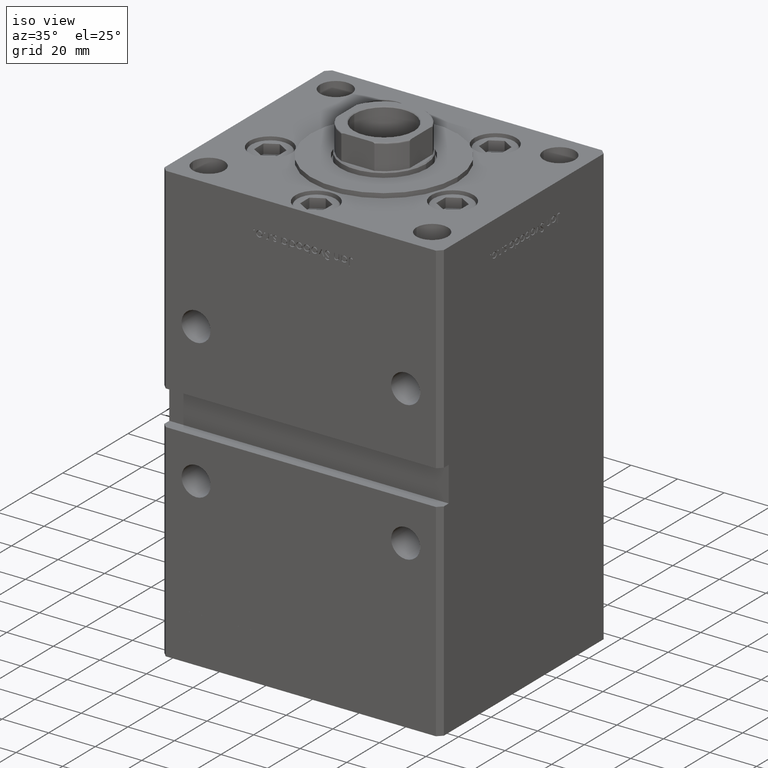
[diagram: clean part render]
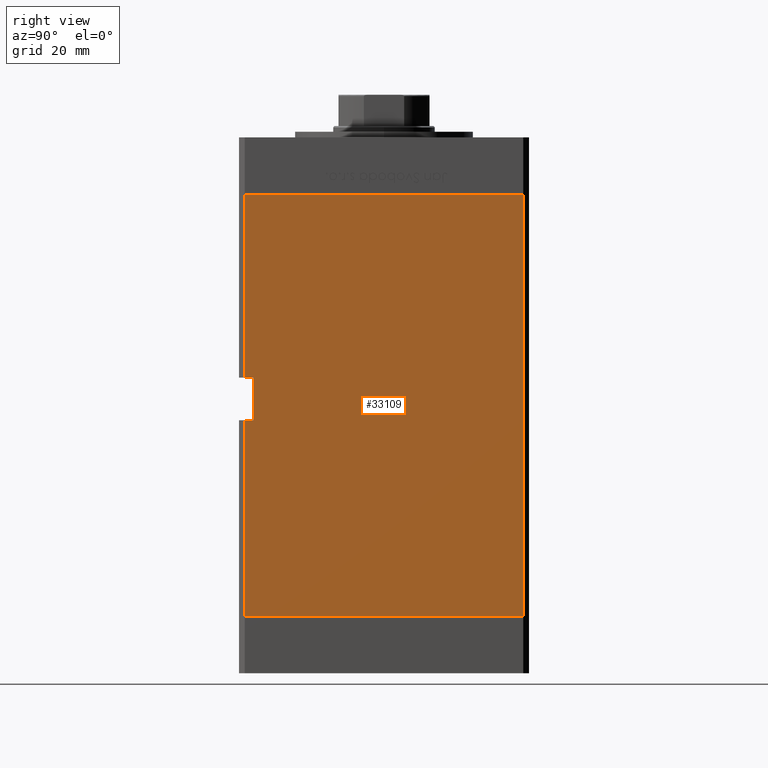
[diagram: tour spotlight — one face highlighted and labeled with its STEP entity id]
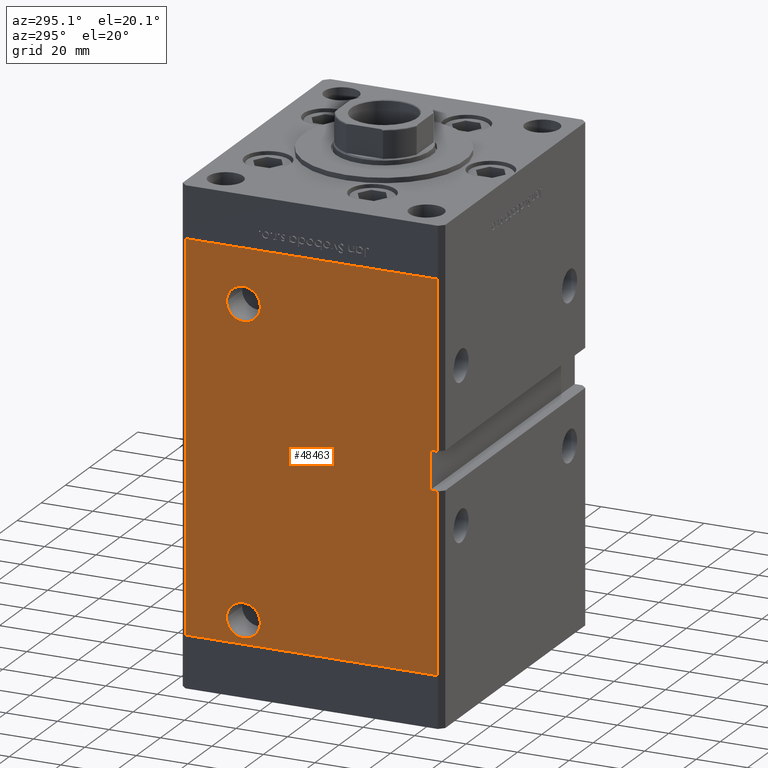
[diagram: tour spotlight — one face highlighted and labeled with its STEP entity id]
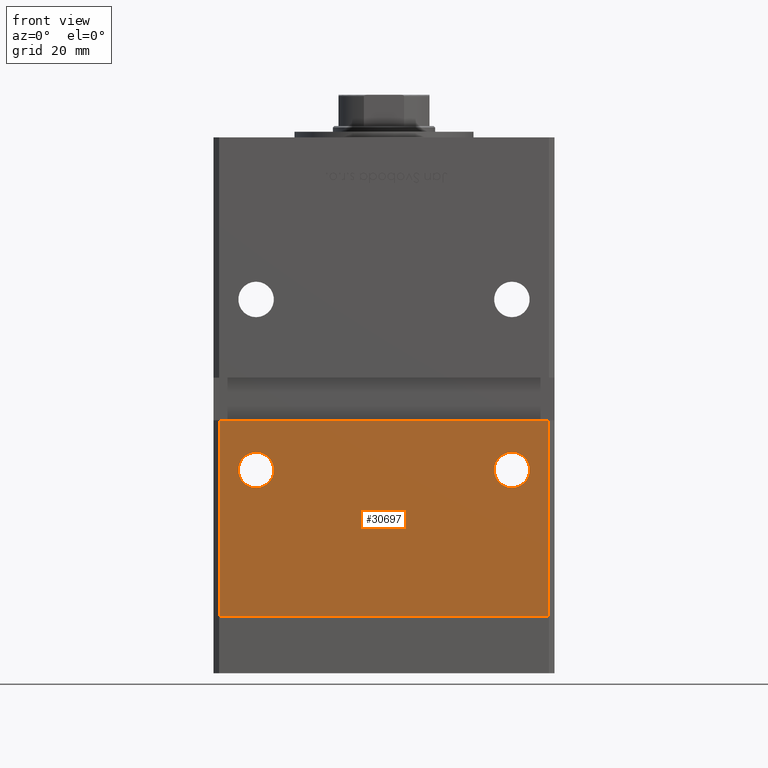
[diagram: tour spotlight — one face highlighted and labeled with its STEP entity id]
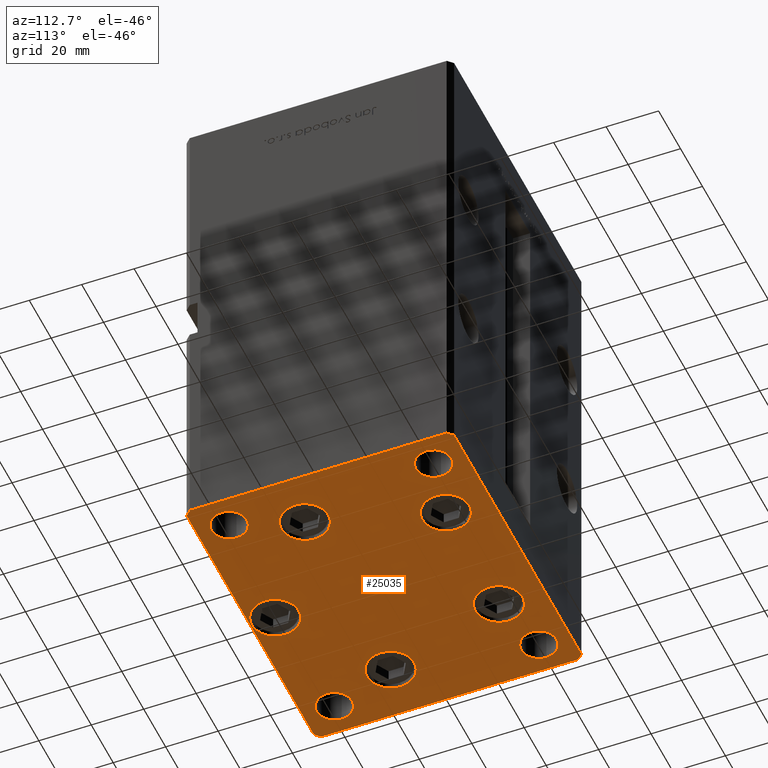
[diagram: tour spotlight — one face highlighted and labeled with its STEP entity id]
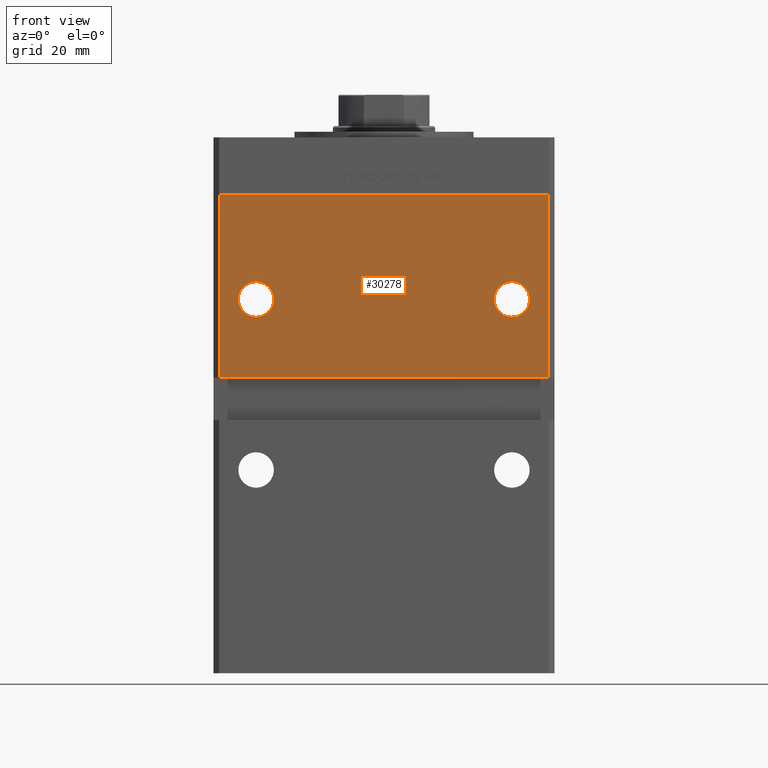
[diagram: tour spotlight — one face highlighted and labeled with its STEP entity id]
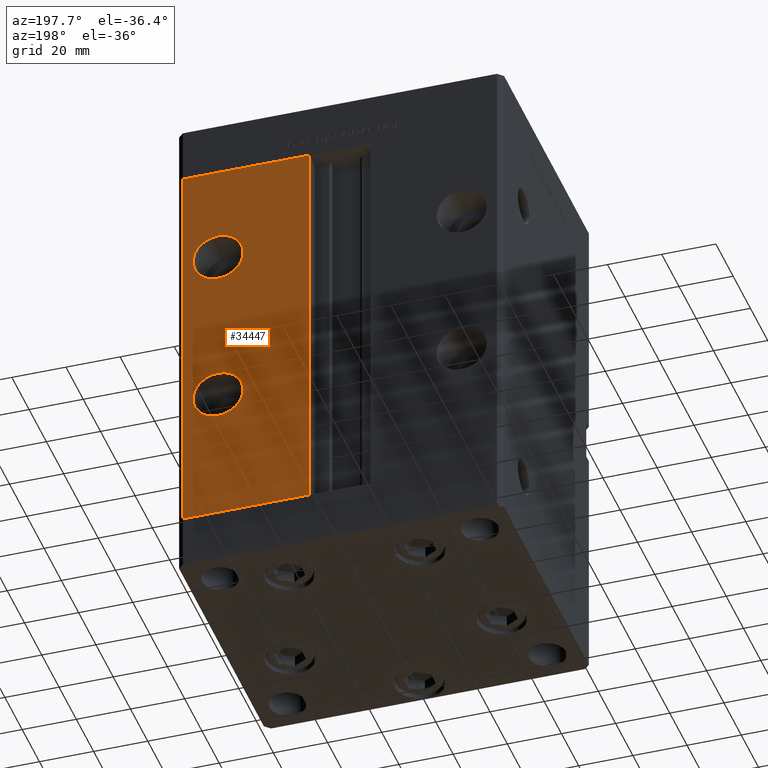
[diagram: tour spotlight — one face highlighted and labeled with its STEP entity id]
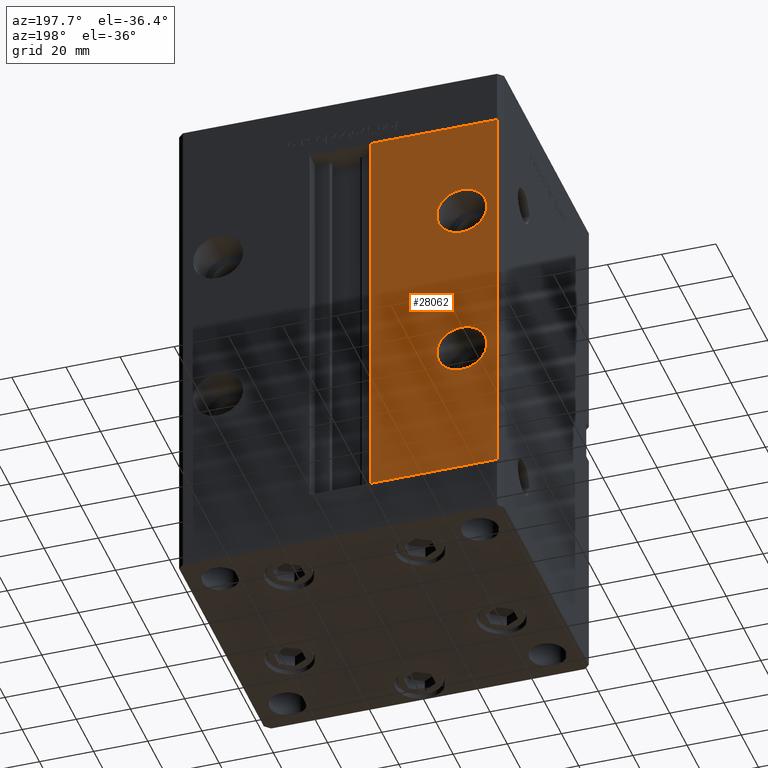
[diagram: tour spotlight — one face highlighted and labeled with its STEP entity id]
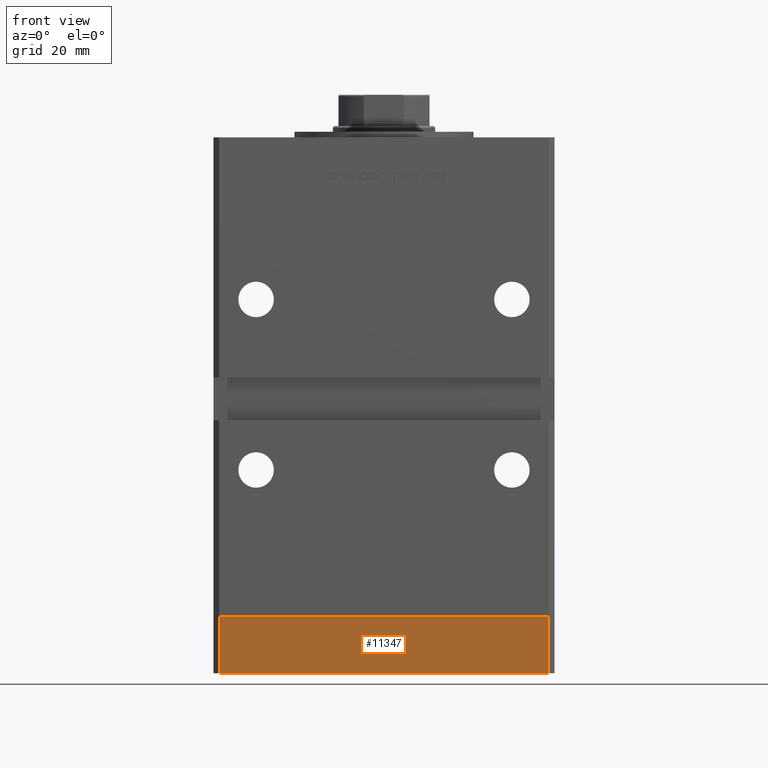
[diagram: tour spotlight — one face highlighted and labeled with its STEP entity id]
A machine part: a face-by-face anatomy tour. The part has 1214 B-rep faces; the first image is the clean iso view, then the 8 largest visible faces are spotlighted one at a time (largest first), each with its STEP entity span.

Face 1 — right view, entity #33109. In plain terms, the highlighted planar face has unit normal (1, -0, 0).
Definition (entity closure, byte-faithful):
#1199 = CARTESIAN_POINT ( 'NONE',  ( 60.00000000000001421, 49.00000000000000000, 148.5000000000000000 ) ) ;
#1383 = DIRECTION ( 'NONE',  ( -0.000000000000000000, -1.000000000000000000, -0.000000000000000000 ) ) ;
#1973 = CARTESIAN_POINT ( 'NONE',  ( 60.00000000000001421, 49.00000000000000000, 148.5000000000000000 ) ) ;
#2589 = CARTESIAN_POINT ( 'NONE',  ( 59.99999999999998579, -48.99999999999998579, 148.5000000000000000 ) ) ;
#3507 = VECTOR ( 'NONE', #18022, 1000.000000000000000 ) ;
#4397 = EDGE_CURVE ( 'NONE', #22231, #30342, #38483, .T. ) ;
#4587 = VERTEX_POINT ( 'NONE', #40853 ) ;
#5126 = CARTESIAN_POINT ( 'NONE',  ( 59.99999999999998579, -45.99999999999999289, 68.99999999999998579 ) ) ;
#5700 = LINE ( 'NONE', #18833, #3507 ) ;
#5963 = LINE ( 'NONE', #6237, #6811 ) ;
#6237 = CARTESIAN_POINT ( 'NONE',  ( 60.00000000000001421, 49.00000000000000000, 0.000000000000000000 ) ) ;
#6520 = DIRECTION ( 'NONE',  ( -0.000000000000000000, -0.000000000000000000, -1.000000000000000000 ) ) ;
#6528 = DIRECTION ( 'NONE',  ( 2.832201593431522219E-16, 1.000000000000000000, 0.000000000000000000 ) ) ;
#6811 = VECTOR ( 'NONE', #22597, 1000.000000000000000 ) ;
#7281 = LINE ( 'NONE', #40029, #18678 ) ;
#7684 = ORIENTED_EDGE ( 'NONE', *, *, #35435, .T. ) ;
#10308 = CARTESIAN_POINT ( 'NONE',  ( 59.99999999999998579, -48.99999999999998579, 0.000000000000000000 ) ) ;
#13250 = VERTEX_POINT ( 'NONE', #43287 ) ;
#14897 = ORIENTED_EDGE ( 'NONE', *, *, #35388, .T. ) ;
#15712 = EDGE_CURVE ( 'NONE', #43004, #4587, #5700, .T. ) ;
#16116 = EDGE_LOOP ( 'NONE', ( #14897, #17783, #34956, #21260, #7684, #51639, #26315, #29266 ) ) ;
#17783 = ORIENTED_EDGE ( 'NONE', *, *, #18989, .T. ) ;
#18022 = DIRECTION ( 'NONE',  ( -0.000000000000000000, -0.000000000000000000, 1.000000000000000000 ) ) ;
#18303 = DIRECTION ( 'NONE',  ( -0.000000000000000000, -1.000000000000000000, -0.000000000000000000 ) ) ;
#18678 = VECTOR ( 'NONE', #18303, 1000.000000000000000 ) ;
#18833 = CARTESIAN_POINT ( 'NONE',  ( 59.99999999999998579, -45.99999999999999289, 83.99999999999998579 ) ) ;
#18989 = EDGE_CURVE ( 'NONE', #38250, #28852, #47050, .T. ) ;
#19358 = CARTESIAN_POINT ( 'NONE',  ( 59.99999999999998579, -48.99999999999998579, 148.5000000000000000 ) ) ;
#20167 = VERTEX_POINT ( 'NONE', #47200 ) ;
#21012 = VECTOR ( 'NONE', #44450, 1000.000000000000000 ) ;
#21260 = ORIENTED_EDGE ( 'NONE', *, *, #4397, .F. ) ;
#22089 = DIRECTION ( 'NONE',  ( -0.000000000000000000, -0.000000000000000000, -1.000000000000000000 ) ) ;
#22231 = VERTEX_POINT ( 'NONE', #1199 ) ;
#22597 = DIRECTION ( 'NONE',  ( -2.832201593431522219E-16, -1.000000000000000000, 0.000000000000000000 ) ) ;
#23230 = LINE ( 'NONE', #2589, #21012 ) ;
#24457 = AXIS2_PLACEMENT_3D ( 'NONE', #26620, #50551, #6528 ) ;
#26315 = ORIENTED_EDGE ( 'NONE', *, *, #39429, .F. ) ;
#26620 = CARTESIAN_POINT ( 'NONE',  ( 60.00000000000001421, 49.00000000000000000, 148.5000000000000000 ) ) ;
#27622 = VECTOR ( 'NONE', #22089, 1000.000000000000000 ) ;
#28550 = EDGE_CURVE ( 'NONE', #20167, #13250, #23230, .T. ) ;
#28852 = VERTEX_POINT ( 'NONE', #10308 ) ;
#29266 = ORIENTED_EDGE ( 'NONE', *, *, #15712, .F. ) ;
#29620 = VECTOR ( 'NONE', #1383, 1000.000000000000000 ) ;
#30342 = VERTEX_POINT ( 'NONE', #49365 ) ;
#31195 = FACE_OUTER_BOUND ( 'NONE', #16116, .T. ) ;
#33085 = VECTOR ( 'NONE', #34122, 1000.000000000000000 ) ;
#33109 = ADVANCED_FACE ( 'NONE', ( #31195 ), #47324, .T. ) ;
#34017 = CARTESIAN_POINT ( 'NONE',  ( 59.99999999999998579, -46.00000000000000000, 68.99999999999998579 ) ) ;
#34122 = DIRECTION ( 'NONE',  ( -2.832201593431522219E-16, -1.000000000000000000, 0.000000000000000000 ) ) ;
#34956 = ORIENTED_EDGE ( 'NONE', *, *, #43623, .F. ) ;
#35388 = EDGE_CURVE ( 'NONE', #43004, #38250, #50766, .T. ) ;
#35435 = EDGE_CURVE ( 'NONE', #22231, #20167, #38681, .T. ) ;
#38250 = VERTEX_POINT ( 'NONE', #43111 ) ;
#38483 = LINE ( 'NONE', #1973, #27622 ) ;
#38681 = LINE ( 'NONE', #46202, #33085 ) ;
#39429 = EDGE_CURVE ( 'NONE', #4587, #13250, #7281, .T. ) ;
#40029 = CARTESIAN_POINT ( 'NONE',  ( 59.99999999999998579, -45.99999999999999289, 83.99999999999998579 ) ) ;
#40853 = CARTESIAN_POINT ( 'NONE',  ( 59.99999999999998579, -45.99999999999999289, 83.99999999999998579 ) ) ;
#43004 = VERTEX_POINT ( 'NONE', #34017 ) ;
#43111 = CARTESIAN_POINT ( 'NONE',  ( 59.99999999999998579, -48.99999999999998579, 68.99999999999998579 ) ) ;
#43287 = CARTESIAN_POINT ( 'NONE',  ( 59.99999999999998579, -48.99999999999998579, 83.99999999999998579 ) ) ;
#43623 = EDGE_CURVE ( 'NONE', #30342, #28852, #5963, .T. ) ;
#44450 = DIRECTION ( 'NONE',  ( -0.000000000000000000, -0.000000000000000000, -1.000000000000000000 ) ) ;
#46202 = CARTESIAN_POINT ( 'NONE',  ( 60.00000000000001421, 49.00000000000000000, 148.5000000000000000 ) ) ;
#47050 = LINE ( 'NONE', #19358, #49898 ) ;
#47200 = CARTESIAN_POINT ( 'NONE',  ( 59.99999999999998579, -48.99999999999998579, 148.5000000000000000 ) ) ;
#47324 = PLANE ( 'NONE',  #24457 ) ;
#49365 = CARTESIAN_POINT ( 'NONE',  ( 60.00000000000001421, 49.00000000000000000, 0.000000000000000000 ) ) ;
#49898 = VECTOR ( 'NONE', #6520, 1000.000000000000000 ) ;
#50551 = DIRECTION ( 'NONE',  ( 1.000000000000000000, -2.832201593431522219E-16, 0.000000000000000000 ) ) ;
#50766 = LINE ( 'NONE', #5126, #29620 ) ;
#51639 = ORIENTED_EDGE ( 'NONE', *, *, #28550, .T. ) ;

Face 2 — auxiliary view, entity #48463. In plain terms, the highlighted planar face has unit normal (1, 0, 0).
Definition (entity closure, byte-faithful):
#1896 = FACE_BOUND ( 'NONE', #22931, .T. ) ;
#2683 = DIRECTION ( 'NONE',  ( 1.000000000000000000, 2.832201593431522219E-16, -0.000000000000000000 ) ) ;
#3310 = CARTESIAN_POINT ( 'NONE',  ( -60.00000000000001421, 49.00000000000000000, 0.000000000000000000 ) ) ;
#3596 = CARTESIAN_POINT ( 'NONE',  ( -59.99999999999998579, -48.99999999999998579, 68.99999999999998579 ) ) ;
#4957 = LINE ( 'NONE', #24553, #26140 ) ;
#4992 = DIRECTION ( 'NONE',  ( 0.000000000000000000, -1.000000000000000000, 0.000000000000000000 ) ) ;
#5825 = DIRECTION ( 'NONE',  ( -1.000000000000000000, -2.275047181608927644E-16, 0.000000000000000000 ) ) ;
#6089 = EDGE_CURVE ( 'NONE', #37528, #28819, #48806, .T. ) ;
#6130 = CIRCLE ( 'NONE', #40408, 6.580000000000002736 ) ;
#6135 = AXIS2_PLACEMENT_3D ( 'NONE', #28665, #37005, #16853 ) ;
#6190 = CARTESIAN_POINT ( 'NONE',  ( -60.00000000000001421, 49.00000000000000000, 148.5000000000000000 ) ) ;
#6225 = VERTEX_POINT ( 'NONE', #49147 ) ;
#6724 = PLANE ( 'NONE',  #22342 ) ;
#7052 = CARTESIAN_POINT ( 'NONE',  ( -59.99999999999998579, -45.99999999999999289, 68.99999999999998579 ) ) ;
#7096 = ORIENTED_EDGE ( 'NONE', *, *, #40766, .F. ) ;
#8310 = AXIS2_PLACEMENT_3D ( 'NONE', #44652, #24222, #48420 ) ;
#8638 = ORIENTED_EDGE ( 'NONE', *, *, #17621, .F. ) ;
#8994 = ORIENTED_EDGE ( 'NONE', *, *, #22197, .F. ) ;
#9073 = CARTESIAN_POINT ( 'NONE',  ( -59.99999999999998579, -48.99999999999998579, 148.5000000000000000 ) ) ;
#10130 = ORIENTED_EDGE ( 'NONE', *, *, #47492, .F. ) ;
#10216 = LINE ( 'NONE', #23080, #47371 ) ;
#10423 = CIRCLE ( 'NONE', #6135, 6.580000000000016058 ) ;
#11350 = EDGE_CURVE ( 'NONE', #31524, #37528, #4957, .T. ) ;
#11486 = CARTESIAN_POINT ( 'NONE',  ( -60.00000000000000711, 33.08000000000001251, 127.5000000000000000 ) ) ;
#12003 = CARTESIAN_POINT ( 'NONE',  ( -59.99999999999998579, -48.99999999999998579, 148.5000000000000000 ) ) ;
#12892 = EDGE_CURVE ( 'NONE', #52521, #21093, #21143, .T. ) ;
#14309 = EDGE_LOOP ( 'NONE', ( #10130, #40819 ) ) ;
#14761 = FACE_OUTER_BOUND ( 'NONE', #28410, .T. ) ;
#15434 = LINE ( 'NONE', #31553, #41976 ) ;
#16540 = DIRECTION ( 'NONE',  ( -1.000000000000000000, -2.275047181608927644E-16, 0.000000000000000000 ) ) ;
#16815 = LINE ( 'NONE', #36701, #42447 ) ;
#16853 = DIRECTION ( 'NONE',  ( 0.000000000000000000, -1.000000000000000000, 0.000000000000000000 ) ) ;
#17368 = VECTOR ( 'NONE', #49271, 1000.000000000000000 ) ;
#17621 = EDGE_CURVE ( 'NONE', #21093, #52521, #6130, .T. ) ;
#18017 = VERTEX_POINT ( 'NONE', #3310 ) ;
#19362 = CIRCLE ( 'NONE', #28777, 6.580000000000016058 ) ;
#20765 = EDGE_CURVE ( 'NONE', #32034, #51410, #10216, .T. ) ;
#21093 = VERTEX_POINT ( 'NONE', #35387 ) ;
#21143 = CIRCLE ( 'NONE', #8310, 6.580000000000002736 ) ;
#21153 = LINE ( 'NONE', #9073, #40988 ) ;
#22197 = EDGE_CURVE ( 'NONE', #32916, #50803, #48999, .T. ) ;
#22342 = AXIS2_PLACEMENT_3D ( 'NONE', #6190, #2683, #26567 ) ;
#22931 = EDGE_LOOP ( 'NONE', ( #31191, #8638 ) ) ;
#23080 = CARTESIAN_POINT ( 'NONE',  ( -59.99999999999998579, -45.99999999999999289, 83.99999999999998579 ) ) ;
#24222 = DIRECTION ( 'NONE',  ( -1.000000000000000000, -2.275047181608927644E-16, 0.000000000000000000 ) ) ;
#24553 = CARTESIAN_POINT ( 'NONE',  ( -59.99999999999998579, -45.99999999999999289, 68.99999999999998579 ) ) ;
#26140 = VECTOR ( 'NONE', #37973, 1000.000000000000000 ) ;
#26567 = DIRECTION ( 'NONE',  ( -2.832201593431522219E-16, 1.000000000000000000, 0.000000000000000000 ) ) ;
#27620 = DIRECTION ( 'NONE',  ( -0.000000000000000000, -1.000000000000000000, -0.000000000000000000 ) ) ;
#28358 = DIRECTION ( 'NONE',  ( -0.000000000000000000, -0.000000000000000000, -1.000000000000000000 ) ) ;
#28410 = EDGE_LOOP ( 'NONE', ( #34759, #50564, #33483, #31148, #7096, #8994, #36883, #33954 ) ) ;
#28665 = CARTESIAN_POINT ( 'NONE',  ( -60.00000000000000711, 26.50000000000000000, 127.5000000000000000 ) ) ;
#28777 = AXIS2_PLACEMENT_3D ( 'NONE', #29137, #16540, #4992 ) ;
#28819 = VERTEX_POINT ( 'NONE', #43344 ) ;
#29137 = CARTESIAN_POINT ( 'NONE',  ( -60.00000000000000711, 26.50000000000000000, 127.5000000000000000 ) ) ;
#29885 = DIRECTION ( 'NONE',  ( 2.832201593431522219E-16, -1.000000000000000000, 0.000000000000000000 ) ) ;
#31148 = ORIENTED_EDGE ( 'NONE', *, *, #20765, .T. ) ;
#31191 = ORIENTED_EDGE ( 'NONE', *, *, #12892, .F. ) ;
#31281 = CARTESIAN_POINT ( 'NONE',  ( -60.00000000000000711, 19.91999999999999815, 9.000000000000007105 ) ) ;
#31524 = VERTEX_POINT ( 'NONE', #7052 ) ;
#31553 = CARTESIAN_POINT ( 'NONE',  ( -59.99999999999998579, -45.99999999999999289, 83.99999999999998579 ) ) ;
#31713 = EDGE_CURVE ( 'NONE', #32916, #18017, #16815, .T. ) ;
#31808 = DIRECTION ( 'NONE',  ( 0.000000000000000000, 0.000000000000000000, -1.000000000000000000 ) ) ;
#32034 = VERTEX_POINT ( 'NONE', #32597 ) ;
#32597 = CARTESIAN_POINT ( 'NONE',  ( -59.99999999999998579, -45.99999999999999289, 83.99999999999998579 ) ) ;
#32760 = VERTEX_POINT ( 'NONE', #11486 ) ;
#32805 = CARTESIAN_POINT ( 'NONE',  ( -59.99999999999998579, -48.99999999999998579, 83.99999999999998579 ) ) ;
#32916 = VERTEX_POINT ( 'NONE', #37703 ) ;
#33195 = DIRECTION ( 'NONE',  ( -0.000000000000000000, -0.000000000000000000, -1.000000000000000000 ) ) ;
#33483 = ORIENTED_EDGE ( 'NONE', *, *, #44793, .F. ) ;
#33702 = VECTOR ( 'NONE', #28358, 1000.000000000000000 ) ;
#33954 = ORIENTED_EDGE ( 'NONE', *, *, #44951, .T. ) ;
#34759 = ORIENTED_EDGE ( 'NONE', *, *, #6089, .F. ) ;
#34830 = EDGE_CURVE ( 'NONE', #32760, #6225, #19362, .T. ) ;
#35387 = CARTESIAN_POINT ( 'NONE',  ( -60.00000000000000711, 33.07999999999999829, 9.000000000000007105 ) ) ;
#36645 = CARTESIAN_POINT ( 'NONE',  ( -60.00000000000001421, 49.00000000000000000, 148.5000000000000000 ) ) ;
#36701 = CARTESIAN_POINT ( 'NONE',  ( -60.00000000000001421, 49.00000000000000000, 148.5000000000000000 ) ) ;
#36883 = ORIENTED_EDGE ( 'NONE', *, *, #31713, .T. ) ;
#37005 = DIRECTION ( 'NONE',  ( -1.000000000000000000, -2.275047181608927644E-16, 0.000000000000000000 ) ) ;
#37528 = VERTEX_POINT ( 'NONE', #3596 ) ;
#37703 = CARTESIAN_POINT ( 'NONE',  ( -60.00000000000001421, 49.00000000000000000, 148.5000000000000000 ) ) ;
#37800 = DIRECTION ( 'NONE',  ( -0.000000000000000000, -0.000000000000000000, -1.000000000000000000 ) ) ;
#37969 = CARTESIAN_POINT ( 'NONE',  ( -60.00000000000001421, 49.00000000000000000, 0.000000000000000000 ) ) ;
#37973 = DIRECTION ( 'NONE',  ( -0.000000000000000000, -1.000000000000000000, -0.000000000000000000 ) ) ;
#40244 = VECTOR ( 'NONE', #29885, 1000.000000000000000 ) ;
#40408 = AXIS2_PLACEMENT_3D ( 'NONE', #46632, #5825, #46903 ) ;
#40766 = EDGE_CURVE ( 'NONE', #50803, #51410, #21153, .T. ) ;
#40819 = ORIENTED_EDGE ( 'NONE', *, *, #34830, .F. ) ;
#40988 = VECTOR ( 'NONE', #37800, 1000.000000000000000 ) ;
#41732 = LINE ( 'NONE', #37969, #40244 ) ;
#41976 = VECTOR ( 'NONE', #31808, 1000.000000000000000 ) ;
#42447 = VECTOR ( 'NONE', #33195, 1000.000000000000000 ) ;
#43344 = CARTESIAN_POINT ( 'NONE',  ( -59.99999999999998579, -48.99999999999998579, 0.000000000000000000 ) ) ;
#43505 = FACE_BOUND ( 'NONE', #14309, .T. ) ;
#44652 = CARTESIAN_POINT ( 'NONE',  ( -60.00000000000000711, 26.50000000000000000, 9.000000000000007105 ) ) ;
#44793 = EDGE_CURVE ( 'NONE', #32034, #31524, #15434, .T. ) ;
#44951 = EDGE_CURVE ( 'NONE', #18017, #28819, #41732, .T. ) ;
#46632 = CARTESIAN_POINT ( 'NONE',  ( -60.00000000000000711, 26.50000000000000000, 9.000000000000007105 ) ) ;
#46903 = DIRECTION ( 'NONE',  ( 0.000000000000000000, -1.000000000000000000, 0.000000000000000000 ) ) ;
#47371 = VECTOR ( 'NONE', #27620, 1000.000000000000000 ) ;
#47492 = EDGE_CURVE ( 'NONE', #6225, #32760, #10423, .T. ) ;
#48420 = DIRECTION ( 'NONE',  ( 0.000000000000000000, -1.000000000000000000, 0.000000000000000000 ) ) ;
#48463 = ADVANCED_FACE ( 'NONE', ( #14761, #1896, #43505 ), #6724, .F. ) ;
#48806 = LINE ( 'NONE', #12003, #33702 ) ;
#48999 = LINE ( 'NONE', #36645, #17368 ) ;
#49147 = CARTESIAN_POINT ( 'NONE',  ( -60.00000000000000711, 19.91999999999998394, 127.5000000000000000 ) ) ;
#49271 = DIRECTION ( 'NONE',  ( 2.832201593431522219E-16, -1.000000000000000000, 0.000000000000000000 ) ) ;
#49589 = CARTESIAN_POINT ( 'NONE',  ( -59.99999999999998579, -48.99999999999998579, 148.5000000000000000 ) ) ;
#50564 = ORIENTED_EDGE ( 'NONE', *, *, #11350, .F. ) ;
#50803 = VERTEX_POINT ( 'NONE', #49589 ) ;
#51410 = VERTEX_POINT ( 'NONE', #32805 ) ;
#52521 = VERTEX_POINT ( 'NONE', #31281 ) ;

Face 3 — front view, entity #30697. In plain terms, the highlighted planar face has unit normal (0, 1, 0).
Definition (entity closure, byte-faithful):
#627 = CARTESIAN_POINT ( 'NONE',  ( -57.99999999999997868, -50.99999999999999289, 0.000000000000000000 ) ) ;
#706 = CARTESIAN_POINT ( 'NONE',  ( 45.00000000000000000, -50.99999999999999289, 45.25000000000000000 ) ) ;
#1349 = ORIENTED_EDGE ( 'NONE', *, *, #2762, .T. ) ;
#2000 = VERTEX_POINT ( 'NONE', #39209 ) ;
#2762 = EDGE_CURVE ( 'NONE', #20908, #30191, #50044, .T. ) ;
#3180 = DIRECTION ( 'NONE',  ( -0.000000000000000000, -0.000000000000000000, -1.000000000000000000 ) ) ;
#3392 = CARTESIAN_POINT ( 'NONE',  ( 57.99999999999997868, -50.99999999999999289, 68.99999999999998579 ) ) ;
#4149 = EDGE_CURVE ( 'NONE', #30191, #20908, #38811, .T. ) ;
#4672 = EDGE_LOOP ( 'NONE', ( #13529, #12319 ) ) ;
#6332 = AXIS2_PLACEMENT_3D ( 'NONE', #29533, #34377, #8876 ) ;
#8300 = EDGE_CURVE ( 'NONE', #2000, #8849, #24335, .T. ) ;
#8815 = DIRECTION ( 'NONE',  ( 0.000000000000000000, -0.000000000000000000, 1.000000000000000000 ) ) ;
#8849 = VERTEX_POINT ( 'NONE', #706 ) ;
#8876 = DIRECTION ( 'NONE',  ( 0.000000000000000000, 0.000000000000000000, 1.000000000000000000 ) ) ;
#8989 = DIRECTION ( 'NONE',  ( 0.000000000000000000, 1.000000000000000000, 0.000000000000000000 ) ) ;
#9187 = ORIENTED_EDGE ( 'NONE', *, *, #41791, .F. ) ;
#9346 = EDGE_LOOP ( 'NONE', ( #34787, #1349 ) ) ;
#9726 = DIRECTION ( 'NONE',  ( 0.000000000000000000, 1.000000000000000000, 0.000000000000000000 ) ) ;
#9810 = CARTESIAN_POINT ( 'NONE',  ( -45.00000000000000000, -50.99999999999999289, 51.50000000000000000 ) ) ;
#11611 = EDGE_CURVE ( 'NONE', #52274, #18881, #49998, .T. ) ;
#11892 = ORIENTED_EDGE ( 'NONE', *, *, #11611, .T. ) ;
#12319 = ORIENTED_EDGE ( 'NONE', *, *, #23840, .T. ) ;
#12502 = CARTESIAN_POINT ( 'NONE',  ( 45.00000000000000000, -50.99999999999999289, 51.50000000000000000 ) ) ;
#13211 = CARTESIAN_POINT ( 'NONE',  ( -57.99999999999997868, -50.99999999999999289, 148.5000000000000000 ) ) ;
#13491 = CARTESIAN_POINT ( 'NONE',  ( 45.00000000000000000, -50.99999999999999289, 51.50000000000000000 ) ) ;
#13529 = ORIENTED_EDGE ( 'NONE', *, *, #8300, .T. ) ;
#14769 = AXIS2_PLACEMENT_3D ( 'NONE', #9810, #14908, #30476 ) ;
#14908 = DIRECTION ( 'NONE',  ( 0.000000000000000000, 1.000000000000000000, 0.000000000000000000 ) ) ;
#14953 = EDGE_CURVE ( 'NONE', #19623, #22657, #35931, .T. ) ;
#15679 = CARTESIAN_POINT ( 'NONE',  ( -57.99999999999997868, -50.99999999999999289, 68.99999999999998579 ) ) ;
#18490 = DIRECTION ( 'NONE',  ( 1.000000000000000000, 0.000000000000000000, 0.000000000000000000 ) ) ;
#18881 = VERTEX_POINT ( 'NONE', #627 ) ;
#19623 = VERTEX_POINT ( 'NONE', #3392 ) ;
#20900 = CIRCLE ( 'NONE', #52609, 6.249999999999998224 ) ;
#20908 = VERTEX_POINT ( 'NONE', #49907 ) ;
#20991 = DIRECTION ( 'NONE',  ( -0.000000000000000000, -0.000000000000000000, -1.000000000000000000 ) ) ;
#22224 = FACE_OUTER_BOUND ( 'NONE', #48663, .T. ) ;
#22657 = VERTEX_POINT ( 'NONE', #37373 ) ;
#23840 = EDGE_CURVE ( 'NONE', #8849, #2000, #20900, .T. ) ;
#24335 = CIRCLE ( 'NONE', #32896, 6.249999999999998224 ) ;
#25186 = PLANE ( 'NONE',  #34672 ) ;
#25566 = DIRECTION ( 'NONE',  ( 0.000000000000000000, 0.000000000000000000, 1.000000000000000000 ) ) ;
#25763 = VECTOR ( 'NONE', #3180, 1000.000000000000000 ) ;
#28695 = VECTOR ( 'NONE', #20991, 1000.000000000000000 ) ;
#28742 = EDGE_CURVE ( 'NONE', #18881, #22657, #29891, .T. ) ;
#29200 = FACE_BOUND ( 'NONE', #9346, .T. ) ;
#29533 = CARTESIAN_POINT ( 'NONE',  ( -45.00000000000000000, -50.99999999999999289, 51.50000000000000000 ) ) ;
#29891 = LINE ( 'NONE', #38772, #49324 ) ;
#30191 = VERTEX_POINT ( 'NONE', #35425 ) ;
#30476 = DIRECTION ( 'NONE',  ( 0.000000000000000000, 0.000000000000000000, 1.000000000000000000 ) ) ;
#30697 = ADVANCED_FACE ( 'NONE', ( #29200, #50178, #22224 ), #25186, .F. ) ;
#32622 = DIRECTION ( 'NONE',  ( 0.000000000000000000, 0.000000000000000000, 1.000000000000000000 ) ) ;
#32896 = AXIS2_PLACEMENT_3D ( 'NONE', #13491, #9726, #25566 ) ;
#34075 = LINE ( 'NONE', #43203, #52978 ) ;
#34377 = DIRECTION ( 'NONE',  ( 0.000000000000000000, 1.000000000000000000, 0.000000000000000000 ) ) ;
#34672 = AXIS2_PLACEMENT_3D ( 'NONE', #46393, #45603, #8815 ) ;
#34787 = ORIENTED_EDGE ( 'NONE', *, *, #4149, .T. ) ;
#35425 = CARTESIAN_POINT ( 'NONE',  ( -45.00000000000000000, -50.99999999999999289, 57.74999999999999289 ) ) ;
#35931 = LINE ( 'NONE', #40218, #25763 ) ;
#37373 = CARTESIAN_POINT ( 'NONE',  ( 57.99999999999997868, -50.99999999999999289, 0.000000000000000000 ) ) ;
#38772 = CARTESIAN_POINT ( 'NONE',  ( -57.99999999999997868, -50.99999999999999289, 0.000000000000000000 ) ) ;
#38811 = CIRCLE ( 'NONE', #14769, 6.249999999999998224 ) ;
#39209 = CARTESIAN_POINT ( 'NONE',  ( 45.00000000000000000, -50.99999999999999289, 57.74999999999999289 ) ) ;
#40218 = CARTESIAN_POINT ( 'NONE',  ( 57.99999999999997868, -50.99999999999999289, 148.5000000000000000 ) ) ;
#41791 = EDGE_CURVE ( 'NONE', #52274, #19623, #34075, .T. ) ;
#42264 = DIRECTION ( 'NONE',  ( 1.000000000000000000, 0.000000000000000000, 0.000000000000000000 ) ) ;
#43203 = CARTESIAN_POINT ( 'NONE',  ( -59.99999999999998579, -50.99999999999999289, 68.99999999999998579 ) ) ;
#45603 = DIRECTION ( 'NONE',  ( 0.000000000000000000, 1.000000000000000000, 0.000000000000000000 ) ) ;
#46104 = ORIENTED_EDGE ( 'NONE', *, *, #14953, .F. ) ;
#46393 = CARTESIAN_POINT ( 'NONE',  ( -57.99999999999997868, -50.99999999999999289, 148.5000000000000000 ) ) ;
#48663 = EDGE_LOOP ( 'NONE', ( #46104, #9187, #11892, #51476 ) ) ;
#49324 = VECTOR ( 'NONE', #42264, 1000.000000000000000 ) ;
#49907 = CARTESIAN_POINT ( 'NONE',  ( -45.00000000000000000, -50.99999999999999289, 45.25000000000000000 ) ) ;
#49998 = LINE ( 'NONE', #13211, #28695 ) ;
#50044 = CIRCLE ( 'NONE', #6332, 6.249999999999998224 ) ;
#50178 = FACE_BOUND ( 'NONE', #4672, .T. ) ;
#51476 = ORIENTED_EDGE ( 'NONE', *, *, #28742, .T. ) ;
#52274 = VERTEX_POINT ( 'NONE', #15679 ) ;
#52609 = AXIS2_PLACEMENT_3D ( 'NONE', #12502, #8989, #32622 ) ;
#52978 = VECTOR ( 'NONE', #18490, 1000.000000000000000 ) ;

Face 4 — auxiliary view, entity #25035. In plain terms, the highlighted planar face has unit normal (0, 0, -1).
Definition (entity closure, byte-faithful):
#165 = ORIENTED_EDGE ( 'NONE', *, *, #51827, .T. ) ;
#263 = AXIS2_PLACEMENT_3D ( 'NONE', #42721, #35196, #51053 ) ;
#569 = CIRCLE ( 'NONE', #31401, 6.749999999999999112 ) ;
#689 = CARTESIAN_POINT ( 'NONE',  ( 30.12657522565562829, -13.83333333333332860, 0.000000000000000000 ) ) ;
#834 = ORIENTED_EDGE ( 'NONE', *, *, #9462, .F. ) ;
#1028 = DIRECTION ( 'NONE',  ( 1.000000000000000000, 0.000000000000000000, 0.000000000000000000 ) ) ;
#1073 = VERTEX_POINT ( 'NONE', #15461 ) ;
#1423 = LINE ( 'NONE', #10802, #4959 ) ;
#1892 = DIRECTION ( 'NONE',  ( 0.000000000000000000, -0.000000000000000000, -1.000000000000000000 ) ) ;
#2095 = CARTESIAN_POINT ( 'NONE',  ( -30.12657522565562829, -13.83333333333333748, 0.000000000000000000 ) ) ;
#2371 = AXIS2_PLACEMENT_3D ( 'NONE', #28370, #12819, #20328 ) ;
#2406 = CARTESIAN_POINT ( 'NONE',  ( 58.00000000000000000, -51.00000000000000711, 0.000000000000000000 ) ) ;
#2473 = EDGE_CURVE ( 'NONE', #32422, #19552, #46550, .T. ) ;
#2880 = DIRECTION ( 'NONE',  ( 1.000000000000000000, 0.000000000000000000, 0.000000000000000000 ) ) ;
#2902 = VERTEX_POINT ( 'NONE', #37021 ) ;
#3273 = AXIS2_PLACEMENT_3D ( 'NONE', #19849, #36517, #8053 ) ;
#3345 = CIRCLE ( 'NONE', #35093, 9.000000000000001776 ) ;
#3847 = DIRECTION ( 'NONE',  ( -0.000000000000000000, 0.000000000000000000, 1.000000000000000000 ) ) ;
#3854 = VERTEX_POINT ( 'NONE', #23790 ) ;
#4124 = EDGE_LOOP ( 'NONE', ( #20005, #35207 ) ) ;
#4556 = DIRECTION ( 'NONE',  ( 1.000000000000000000, 1.196361017915039486E-16, 0.000000000000000000 ) ) ;
#4959 = VECTOR ( 'NONE', #43299, 1000.000000000000000 ) ;
#5256 = VECTOR ( 'NONE', #4556, 1000.000000000000000 ) ;
#5478 = EDGE_CURVE ( 'NONE', #19552, #32422, #18254, .T. ) ;
#5660 = CARTESIAN_POINT ( 'NONE',  ( -57.99999999999997868, -51.00000000000001421, 0.000000000000000000 ) ) ;
#5713 = CARTESIAN_POINT ( 'NONE',  ( -39.12657522565562829, -13.83333333333333925, 0.000000000000000000 ) ) ;
#6029 = DIRECTION ( 'NONE',  ( 1.000000000000000000, 0.000000000000000000, 0.000000000000000000 ) ) ;
#6335 = VECTOR ( 'NONE', #29715, 1000.000000000000000 ) ;
#6844 = FACE_BOUND ( 'NONE', #17045, .T. ) ;
#6902 = CARTESIAN_POINT ( 'NONE',  ( -33.19288941894912170, 33.71875000000000000, 0.000000000000000000 ) ) ;
#6971 = CARTESIAN_POINT ( 'NONE',  ( -48.00000000000000000, -39.00000000000000000, 0.000000000000000000 ) ) ;
#7235 = AXIS2_PLACEMENT_3D ( 'NONE', #44411, #24239, #32569 ) ;
#7356 = DIRECTION ( 'NONE',  ( 0.000000000000000000, -0.000000000000000000, -1.000000000000000000 ) ) ;
#7379 = VERTEX_POINT ( 'NONE', #46984 ) ;
#7691 = DIRECTION ( 'NONE',  ( -0.7071067811865487940, 0.7071067811865463515, 0.000000000000000000 ) ) ;
#7977 = DIRECTION ( 'NONE',  ( 1.000000000000000000, 0.000000000000000000, 0.000000000000000000 ) ) ;
#8053 = DIRECTION ( 'NONE',  ( 1.000000000000000000, 0.000000000000000000, 0.000000000000000000 ) ) ;
#8184 = AXIS2_PLACEMENT_3D ( 'NONE', #46364, #12085, #32744 ) ;
#9164 = CIRCLE ( 'NONE', #2371, 6.749999999999999112 ) ;
#9439 = AXIS2_PLACEMENT_3D ( 'NONE', #44139, #7356, #35822 ) ;
#9462 = EDGE_CURVE ( 'NONE', #23448, #3854, #14080, .T. ) ;
#9533 = CARTESIAN_POINT ( 'NONE',  ( -60.00000000000000000, -49.00000000000000000, 0.000000000000000000 ) ) ;
#9606 = CARTESIAN_POINT ( 'NONE',  ( 48.12657522565562829, -13.83333333333332682, 0.000000000000000000 ) ) ;
#9792 = CIRCLE ( 'NONE', #14091, 9.000000000000001776 ) ;
#9930 = CARTESIAN_POINT ( 'NONE',  ( 5.082284216461515748E-15, -41.50000000000000000, 0.000000000000000000 ) ) ;
#10050 = DIRECTION ( 'NONE',  ( 0.000000000000000000, -0.000000000000000000, -1.000000000000000000 ) ) ;
#10168 = CIRCLE ( 'NONE', #40168, 6.749999999999999112 ) ;
#10189 = DIRECTION ( 'NONE',  ( 0.7071067811865474617, 0.7071067811865474617, 0.000000000000000000 ) ) ;
#10802 = CARTESIAN_POINT ( 'NONE',  ( 57.99999999999993605, 51.00000000000000711, 0.000000000000000000 ) ) ;
#10825 = ORIENTED_EDGE ( 'NONE', *, *, #2473, .T. ) ;
#11910 = EDGE_CURVE ( 'NONE', #20244, #26235, #49312, .T. ) ;
#11911 = FACE_BOUND ( 'NONE', #44658, .T. ) ;
#12085 = DIRECTION ( 'NONE',  ( 0.000000000000000000, -0.000000000000000000, -1.000000000000000000 ) ) ;
#12148 = VERTEX_POINT ( 'NONE', #43339 ) ;
#12668 = ORIENTED_EDGE ( 'NONE', *, *, #17157, .T. ) ;
#12736 = EDGE_LOOP ( 'NONE', ( #41143, #834 ) ) ;
#12819 = DIRECTION ( 'NONE',  ( 0.000000000000000000, -0.000000000000000000, -1.000000000000000000 ) ) ;
#13318 = AXIS2_PLACEMENT_3D ( 'NONE', #29989, #17381, #1028 ) ;
#13472 = EDGE_CURVE ( 'NONE', #40078, #7379, #50733, .T. ) ;
#13542 = CARTESIAN_POINT ( 'NONE',  ( 24.19288941894911460, 33.71875000000000711, 0.000000000000000000 ) ) ;
#14006 = ORIENTED_EDGE ( 'NONE', *, *, #11910, .T. ) ;
#14080 = CIRCLE ( 'NONE', #16638, 6.749999999999999112 ) ;
#14091 = AXIS2_PLACEMENT_3D ( 'NONE', #5713, #51359, #14560 ) ;
#14560 = DIRECTION ( 'NONE',  ( 1.000000000000000000, 0.000000000000000000, 0.000000000000000000 ) ) ;
#14705 = CIRCLE ( 'NONE', #18990, 9.000000000000000000 ) ;
#15045 = CIRCLE ( 'NONE', #13318, 6.749999999999999112 ) ;
#15275 = DIRECTION ( 'NONE',  ( 1.000000000000000000, 0.000000000000000000, 0.000000000000000000 ) ) ;
#15424 = LINE ( 'NONE', #32590, #25215 ) ;
#15461 = CARTESIAN_POINT ( 'NONE',  ( -41.25000000000000000, -39.00000000000000000, 0.000000000000000000 ) ) ;
#15472 = EDGE_CURVE ( 'NONE', #35364, #22523, #44642, .T. ) ;
#15665 = FACE_BOUND ( 'NONE', #4124, .T. ) ;
#15883 = DIRECTION ( 'NONE',  ( 1.000000000000000000, 0.000000000000000000, 0.000000000000000000 ) ) ;
#16341 = AXIS2_PLACEMENT_3D ( 'NONE', #46850, #10050, #6029 ) ;
#16627 = CARTESIAN_POINT ( 'NONE',  ( -60.00000000000000000, -49.00000000000000000, 0.000000000000000000 ) ) ;
#16638 = AXIS2_PLACEMENT_3D ( 'NONE', #18609, #34993, #39539 ) ;
#16674 = CARTESIAN_POINT ( 'NONE',  ( 39.12657522565562829, -13.83333333333332860, 0.000000000000000000 ) ) ;
#16684 = VECTOR ( 'NONE', #49137, 1000.000000000000114 ) ;
#16887 = CARTESIAN_POINT ( 'NONE',  ( -57.99999999999997868, -51.00000000000001421, 0.000000000000000000 ) ) ;
#17045 = EDGE_LOOP ( 'NONE', ( #43326, #12668 ) ) ;
#17157 = EDGE_CURVE ( 'NONE', #22523, #35364, #14705, .T. ) ;
#17381 = DIRECTION ( 'NONE',  ( -0.000000000000000000, 0.000000000000000000, 1.000000000000000000 ) ) ;
#18249 = DIRECTION ( 'NONE',  ( 1.000000000000000000, 0.000000000000000000, 0.000000000000000000 ) ) ;
#18254 = CIRCLE ( 'NONE', #263, 9.000000000000000000 ) ;
#18540 = CARTESIAN_POINT ( 'NONE',  ( -48.00000000000000000, 39.00000000000000000, 0.000000000000000000 ) ) ;
#18609 = CARTESIAN_POINT ( 'NONE',  ( 48.00000000000000000, 38.99999999999999289, 0.000000000000000000 ) ) ;
#18935 = CARTESIAN_POINT ( 'NONE',  ( -41.25000000000000000, 39.00000000000000000, 0.000000000000000000 ) ) ;
#18979 = DIRECTION ( 'NONE',  ( 0.000000000000000000, -0.000000000000000000, -1.000000000000000000 ) ) ;
#18990 = AXIS2_PLACEMENT_3D ( 'NONE', #9930, #27606, #15275 ) ;
#19120 = VERTEX_POINT ( 'NONE', #19873 ) ;
#19552 = VERTEX_POINT ( 'NONE', #6902 ) ;
#19708 = CIRCLE ( 'NONE', #9439, 9.000000000000001776 ) ;
#19819 = DIRECTION ( 'NONE',  ( 1.000000000000000000, 0.000000000000000000, 0.000000000000000000 ) ) ;
#19849 = CARTESIAN_POINT ( 'NONE',  ( -48.00000000000000000, -39.00000000000000000, 0.000000000000000000 ) ) ;
#19873 = CARTESIAN_POINT ( 'NONE',  ( 57.99999999999993605, 51.00000000000000711, 0.000000000000000000 ) ) ;
#19956 = FACE_OUTER_BOUND ( 'NONE', #44796, .T. ) ;
#20005 = ORIENTED_EDGE ( 'NONE', *, *, #43389, .T. ) ;
#20244 = VERTEX_POINT ( 'NONE', #27044 ) ;
#20326 = ORIENTED_EDGE ( 'NONE', *, *, #13472, .T. ) ;
#20328 = DIRECTION ( 'NONE',  ( 1.000000000000000000, 0.000000000000000000, 0.000000000000000000 ) ) ;
#20687 = CARTESIAN_POINT ( 'NONE',  ( -60.00000000000000000, 48.99999999999995737, 0.000000000000000000 ) ) ;
#20696 = VERTEX_POINT ( 'NONE', #5660 ) ;
#20884 = VERTEX_POINT ( 'NONE', #9606 ) ;
#20944 = EDGE_LOOP ( 'NONE', ( #49047, #30633 ) ) ;
#21546 = DIRECTION ( 'NONE',  ( 1.000000000000000000, 0.000000000000000000, 0.000000000000000000 ) ) ;
#21814 = CARTESIAN_POINT ( 'NONE',  ( -24.19288941894912170, 33.71875000000000000, 0.000000000000000000 ) ) ;
#21999 = AXIS2_PLACEMENT_3D ( 'NONE', #38406, #1892, #18249 ) ;
#22523 = VERTEX_POINT ( 'NONE', #48680 ) ;
#22559 = DIRECTION ( 'NONE',  ( -0.000000000000000000, 0.000000000000000000, 1.000000000000000000 ) ) ;
#22779 = AXIS2_PLACEMENT_3D ( 'NONE', #16674, #24981, #15883 ) ;
#23448 = VERTEX_POINT ( 'NONE', #39434 ) ;
#23790 = CARTESIAN_POINT ( 'NONE',  ( 54.75000000000000000, 38.99999999999999289, 0.000000000000000000 ) ) ;
#24239 = DIRECTION ( 'NONE',  ( -0.000000000000000000, 0.000000000000000000, 1.000000000000000000 ) ) ;
#24252 = ORIENTED_EDGE ( 'NONE', *, *, #36879, .T. ) ;
#24439 = CARTESIAN_POINT ( 'NONE',  ( 60.00000000000001421, -48.99999999999999289, 0.000000000000000000 ) ) ;
#24492 = CIRCLE ( 'NONE', #22779, 9.000000000000001776 ) ;
#24493 = EDGE_CURVE ( 'NONE', #7379, #12148, #45851, .T. ) ;
#24620 = CARTESIAN_POINT ( 'NONE',  ( -54.75000000000000000, -39.00000000000000000, 0.000000000000000000 ) ) ;
#24981 = DIRECTION ( 'NONE',  ( 0.000000000000000000, -0.000000000000000000, -1.000000000000000000 ) ) ;
#25035 = ADVANCED_FACE ( 'NONE', ( #35826, #15665, #47914, #6844, #52202, #48441, #31780, #11911, #19956, #27227 ), #36081, .T. ) ;
#25144 = AXIS2_PLACEMENT_3D ( 'NONE', #21814, #30403, #21546 ) ;
#25181 = EDGE_CURVE ( 'NONE', #47527, #2902, #9792, .T. ) ;
#25215 = VECTOR ( 'NONE', #31798, 1000.000000000000114 ) ;
#26183 = AXIS2_PLACEMENT_3D ( 'NONE', #44219, #18979, #2880 ) ;
#26235 = VERTEX_POINT ( 'NONE', #39480 ) ;
#26387 = EDGE_CURVE ( 'NONE', #38157, #20696, #37035, .T. ) ;
#26414 = DIRECTION ( 'NONE',  ( 0.000000000000000000, -1.000000000000000000, 0.000000000000000000 ) ) ;
#26463 = CARTESIAN_POINT ( 'NONE',  ( -57.99999999999999289, 50.99999999999997868, 0.000000000000000000 ) ) ;
#26962 = ORIENTED_EDGE ( 'NONE', *, *, #47746, .T. ) ;
#27044 = CARTESIAN_POINT ( 'NONE',  ( 54.75000000000000000, -38.99999999999999289, 0.000000000000000000 ) ) ;
#27227 = FACE_BOUND ( 'NONE', #20944, .T. ) ;
#27606 = DIRECTION ( 'NONE',  ( 0.000000000000000000, -0.000000000000000000, -1.000000000000000000 ) ) ;
#27798 = EDGE_LOOP ( 'NONE', ( #33284, #10825 ) ) ;
#27807 = ORIENTED_EDGE ( 'NONE', *, *, #40193, .T. ) ;
#27859 = AXIS2_PLACEMENT_3D ( 'NONE', #6971, #39718, #19819 ) ;
#28370 = CARTESIAN_POINT ( 'NONE',  ( 48.00000000000000000, -38.99999999999999289, 0.000000000000000000 ) ) ;
#28383 = VERTEX_POINT ( 'NONE', #41273 ) ;
#29045 = CARTESIAN_POINT ( 'NONE',  ( 33.19288941894911460, 33.71875000000000711, 0.000000000000000000 ) ) ;
#29590 = EDGE_CURVE ( 'NONE', #48397, #38157, #50869, .T. ) ;
#29640 = CARTESIAN_POINT ( 'NONE',  ( -60.00000000000000000, 48.99999999999995737, 0.000000000000000000 ) ) ;
#29715 = DIRECTION ( 'NONE',  ( -7.080503983578803823E-16, 1.000000000000000000, 0.000000000000000000 ) ) ;
#29989 = CARTESIAN_POINT ( 'NONE',  ( -48.00000000000000000, 39.00000000000000000, 0.000000000000000000 ) ) ;
#30403 = DIRECTION ( 'NONE',  ( 0.000000000000000000, -0.000000000000000000, -1.000000000000000000 ) ) ;
#30633 = ORIENTED_EDGE ( 'NONE', *, *, #33532, .T. ) ;
#30642 = ORIENTED_EDGE ( 'NONE', *, *, #29590, .T. ) ;
#31248 = EDGE_CURVE ( 'NONE', #44623, #48397, #15424, .T. ) ;
#31401 = AXIS2_PLACEMENT_3D ( 'NONE', #18540, #22559, #7977 ) ;
#31780 = FACE_BOUND ( 'NONE', #48839, .T. ) ;
#31798 = DIRECTION ( 'NONE',  ( -0.7071067811865451302, -0.7071067811865500152, 0.000000000000000000 ) ) ;
#31989 = VERTEX_POINT ( 'NONE', #18935 ) ;
#32255 = EDGE_LOOP ( 'NONE', ( #42506, #38129 ) ) ;
#32256 = CARTESIAN_POINT ( 'NONE',  ( -8.999999999999994671, -41.50000000000000000, 0.000000000000000000 ) ) ;
#32277 = CIRCLE ( 'NONE', #21999, 9.000000000000001776 ) ;
#32422 = VERTEX_POINT ( 'NONE', #39232 ) ;
#32427 = CIRCLE ( 'NONE', #3273, 6.749999999999999112 ) ;
#32569 = DIRECTION ( 'NONE',  ( 1.000000000000000000, 0.000000000000000000, 0.000000000000000000 ) ) ;
#32590 = CARTESIAN_POINT ( 'NONE',  ( -57.99999999999999289, 50.99999999999997868, 0.000000000000000000 ) ) ;
#32744 = DIRECTION ( 'NONE',  ( 1.000000000000000000, 0.000000000000000000, 0.000000000000000000 ) ) ;
#33284 = ORIENTED_EDGE ( 'NONE', *, *, #5478, .T. ) ;
#33532 = EDGE_CURVE ( 'NONE', #45314, #1073, #51927, .T. ) ;
#33693 = EDGE_CURVE ( 'NONE', #28383, #31989, #15045, .T. ) ;
#33847 = EDGE_CURVE ( 'NONE', #20884, #43252, #35632, .T. ) ;
#34077 = LINE ( 'NONE', #16887, #5256 ) ;
#34501 = ORIENTED_EDGE ( 'NONE', *, *, #33693, .F. ) ;
#34993 = DIRECTION ( 'NONE',  ( -0.000000000000000000, 0.000000000000000000, 1.000000000000000000 ) ) ;
#35093 = AXIS2_PLACEMENT_3D ( 'NONE', #13542, #38780, #42274 ) ;
#35196 = DIRECTION ( 'NONE',  ( 0.000000000000000000, -0.000000000000000000, -1.000000000000000000 ) ) ;
#35207 = ORIENTED_EDGE ( 'NONE', *, *, #47131, .T. ) ;
#35338 = EDGE_CURVE ( 'NONE', #43252, #20884, #24492, .T. ) ;
#35364 = VERTEX_POINT ( 'NONE', #32256 ) ;
#35601 = EDGE_CURVE ( 'NONE', #31989, #28383, #569, .T. ) ;
#35632 = CIRCLE ( 'NONE', #26183, 9.000000000000001776 ) ;
#35822 = DIRECTION ( 'NONE',  ( 1.000000000000000000, 0.000000000000000000, 0.000000000000000000 ) ) ;
#35826 = FACE_BOUND ( 'NONE', #27798, .T. ) ;
#36081 = PLANE ( 'NONE',  #7235 ) ;
#36517 = DIRECTION ( 'NONE',  ( 0.000000000000000000, -0.000000000000000000, -1.000000000000000000 ) ) ;
#36608 = CARTESIAN_POINT ( 'NONE',  ( 58.00000000000000000, -51.00000000000000711, 0.000000000000000000 ) ) ;
#36847 = ORIENTED_EDGE ( 'NONE', *, *, #31248, .T. ) ;
#36879 = EDGE_CURVE ( 'NONE', #2902, #47527, #32277, .T. ) ;
#37021 = CARTESIAN_POINT ( 'NONE',  ( -48.12657522565562829, -13.83333333333333925, 0.000000000000000000 ) ) ;
#37035 = LINE ( 'NONE', #16627, #16684 ) ;
#37385 = CARTESIAN_POINT ( 'NONE',  ( 48.00000000000000000, 38.99999999999999289, 0.000000000000000000 ) ) ;
#38129 = ORIENTED_EDGE ( 'NONE', *, *, #33847, .T. ) ;
#38157 = VERTEX_POINT ( 'NONE', #9533 ) ;
#38406 = CARTESIAN_POINT ( 'NONE',  ( -39.12657522565562829, -13.83333333333333925, 0.000000000000000000 ) ) ;
#38486 = EDGE_CURVE ( 'NONE', #26235, #20244, #9164, .T. ) ;
#38780 = DIRECTION ( 'NONE',  ( 0.000000000000000000, -0.000000000000000000, -1.000000000000000000 ) ) ;
#39232 = CARTESIAN_POINT ( 'NONE',  ( -15.19288941894912170, 33.71875000000000000, 0.000000000000000000 ) ) ;
#39434 = CARTESIAN_POINT ( 'NONE',  ( 41.25000000000000000, 38.99999999999999289, 0.000000000000000000 ) ) ;
#39480 = CARTESIAN_POINT ( 'NONE',  ( 41.25000000000000000, -38.99999999999999289, 0.000000000000000000 ) ) ;
#39501 = ORIENTED_EDGE ( 'NONE', *, *, #24493, .T. ) ;
#39539 = DIRECTION ( 'NONE',  ( 1.000000000000000000, 0.000000000000000000, 0.000000000000000000 ) ) ;
#39653 = CARTESIAN_POINT ( 'NONE',  ( 59.99999999999994316, 49.00000000000000000, 0.000000000000000000 ) ) ;
#39718 = DIRECTION ( 'NONE',  ( 0.000000000000000000, -0.000000000000000000, -1.000000000000000000 ) ) ;
#40078 = VERTEX_POINT ( 'NONE', #36608 ) ;
#40168 = AXIS2_PLACEMENT_3D ( 'NONE', #37385, #3847, #49733 ) ;
#40193 = EDGE_CURVE ( 'NONE', #19120, #44623, #1423, .T. ) ;
#41143 = ORIENTED_EDGE ( 'NONE', *, *, #45868, .F. ) ;
#41273 = CARTESIAN_POINT ( 'NONE',  ( -54.75000000000000000, 39.00000000000000000, 0.000000000000000000 ) ) ;
#41583 = EDGE_CURVE ( 'NONE', #1073, #45314, #32427, .T. ) ;
#42274 = DIRECTION ( 'NONE',  ( 1.000000000000000000, 0.000000000000000000, 0.000000000000000000 ) ) ;
#42506 = ORIENTED_EDGE ( 'NONE', *, *, #35338, .T. ) ;
#42717 = EDGE_LOOP ( 'NONE', ( #24252, #45006 ) ) ;
#42721 = CARTESIAN_POINT ( 'NONE',  ( -24.19288941894912170, 33.71875000000000000, 0.000000000000000000 ) ) ;
#43252 = VERTEX_POINT ( 'NONE', #689 ) ;
#43299 = DIRECTION ( 'NONE',  ( -1.000000000000000000, -2.392722035830079958E-16, 0.000000000000000000 ) ) ;
#43326 = ORIENTED_EDGE ( 'NONE', *, *, #15472, .T. ) ;
#43339 = CARTESIAN_POINT ( 'NONE',  ( 59.99999999999994316, 49.00000000000000000, 0.000000000000000000 ) ) ;
#43389 = EDGE_CURVE ( 'NONE', #43649, #43518, #3345, .T. ) ;
#43518 = VERTEX_POINT ( 'NONE', #29045 ) ;
#43649 = VERTEX_POINT ( 'NONE', #47044 ) ;
#44139 = CARTESIAN_POINT ( 'NONE',  ( 24.19288941894911460, 33.71875000000000711, 0.000000000000000000 ) ) ;
#44219 = CARTESIAN_POINT ( 'NONE',  ( 39.12657522565562829, -13.83333333333332860, 0.000000000000000000 ) ) ;
#44411 = CARTESIAN_POINT ( 'NONE',  ( 0.000000000000000000, 0.000000000000000000, 0.000000000000000000 ) ) ;
#44623 = VERTEX_POINT ( 'NONE', #26463 ) ;
#44642 = CIRCLE ( 'NONE', #16341, 9.000000000000000000 ) ;
#44658 = EDGE_LOOP ( 'NONE', ( #50613, #34501 ) ) ;
#44725 = VECTOR ( 'NONE', #7691, 1000.000000000000000 ) ;
#44796 = EDGE_LOOP ( 'NONE', ( #47633, #165, #20326, #39501, #26962, #27807, #36847, #30642 ) ) ;
#45006 = ORIENTED_EDGE ( 'NONE', *, *, #25181, .T. ) ;
#45314 = VERTEX_POINT ( 'NONE', #24620 ) ;
#45851 = LINE ( 'NONE', #24439, #6335 ) ;
#45868 = EDGE_CURVE ( 'NONE', #3854, #23448, #10168, .T. ) ;
#46364 = CARTESIAN_POINT ( 'NONE',  ( 48.00000000000000000, -38.99999999999999289, 0.000000000000000000 ) ) ;
#46550 = CIRCLE ( 'NONE', #25144, 9.000000000000000000 ) ;
#46850 = CARTESIAN_POINT ( 'NONE',  ( 5.082284216461515748E-15, -41.50000000000000000, 0.000000000000000000 ) ) ;
#46922 = VECTOR ( 'NONE', #10189, 1000.000000000000114 ) ;
#46984 = CARTESIAN_POINT ( 'NONE',  ( 60.00000000000001421, -48.99999999999999289, 0.000000000000000000 ) ) ;
#47044 = CARTESIAN_POINT ( 'NONE',  ( 15.19288941894911105, 33.71875000000000711, 0.000000000000000000 ) ) ;
#47131 = EDGE_CURVE ( 'NONE', #43518, #43649, #19708, .T. ) ;
#47527 = VERTEX_POINT ( 'NONE', #2095 ) ;
#47633 = ORIENTED_EDGE ( 'NONE', *, *, #26387, .T. ) ;
#47746 = EDGE_CURVE ( 'NONE', #12148, #19120, #48512, .T. ) ;
#47914 = FACE_BOUND ( 'NONE', #32255, .T. ) ;
#48325 = ORIENTED_EDGE ( 'NONE', *, *, #38486, .T. ) ;
#48397 = VERTEX_POINT ( 'NONE', #20687 ) ;
#48441 = FACE_BOUND ( 'NONE', #12736, .T. ) ;
#48512 = LINE ( 'NONE', #39653, #44725 ) ;
#48680 = CARTESIAN_POINT ( 'NONE',  ( 9.000000000000005329, -41.50000000000000000, 0.000000000000000000 ) ) ;
#48839 = EDGE_LOOP ( 'NONE', ( #14006, #48325 ) ) ;
#49047 = ORIENTED_EDGE ( 'NONE', *, *, #41583, .T. ) ;
#49137 = DIRECTION ( 'NONE',  ( 0.7071067811865474617, -0.7071067811865474617, 0.000000000000000000 ) ) ;
#49312 = CIRCLE ( 'NONE', #8184, 6.749999999999999112 ) ;
#49733 = DIRECTION ( 'NONE',  ( 1.000000000000000000, 0.000000000000000000, 0.000000000000000000 ) ) ;
#50200 = VECTOR ( 'NONE', #26414, 1000.000000000000000 ) ;
#50613 = ORIENTED_EDGE ( 'NONE', *, *, #35601, .F. ) ;
#50733 = LINE ( 'NONE', #2406, #46922 ) ;
#50869 = LINE ( 'NONE', #29640, #50200 ) ;
#51053 = DIRECTION ( 'NONE',  ( 1.000000000000000000, 0.000000000000000000, 0.000000000000000000 ) ) ;
#51359 = DIRECTION ( 'NONE',  ( 0.000000000000000000, -0.000000000000000000, -1.000000000000000000 ) ) ;
#51827 = EDGE_CURVE ( 'NONE', #20696, #40078, #34077, .T. ) ;
#51927 = CIRCLE ( 'NONE', #27859, 6.749999999999999112 ) ;
#52202 = FACE_BOUND ( 'NONE', #42717, .T. ) ;

Face 5 — front view, entity #30278. In plain terms, the highlighted planar face has unit normal (0, 1, 0).
Definition (entity closure, byte-faithful):
#1276 = CARTESIAN_POINT ( 'NONE',  ( 45.00000000000000000, -50.99999999999999289, 111.5000000000000000 ) ) ;
#1718 = CARTESIAN_POINT ( 'NONE',  ( -57.99999999999997868, -50.99999999999999289, 148.5000000000000000 ) ) ;
#2144 = VECTOR ( 'NONE', #28696, 1000.000000000000000 ) ;
#2153 = DIRECTION ( 'NONE',  ( 0.000000000000000000, -0.000000000000000000, 1.000000000000000000 ) ) ;
#2262 = LINE ( 'NONE', #1718, #20462 ) ;
#3818 = AXIS2_PLACEMENT_3D ( 'NONE', #22532, #38927, #2153 ) ;
#5091 = DIRECTION ( 'NONE',  ( 0.000000000000000000, 1.000000000000000000, 0.000000000000000000 ) ) ;
#6558 = DIRECTION ( 'NONE',  ( 1.000000000000000000, 0.000000000000000000, 0.000000000000000000 ) ) ;
#6674 = VERTEX_POINT ( 'NONE', #9054 ) ;
#8436 = AXIS2_PLACEMENT_3D ( 'NONE', #21722, #5091, #21449 ) ;
#9054 = CARTESIAN_POINT ( 'NONE',  ( -57.99999999999997868, -50.99999999999999289, 83.99999999999998579 ) ) ;
#9172 = ORIENTED_EDGE ( 'NONE', *, *, #33317, .F. ) ;
#9575 = AXIS2_PLACEMENT_3D ( 'NONE', #1276, #17082, #33469 ) ;
#10035 = CIRCLE ( 'NONE', #34879, 6.250000000000005329 ) ;
#10194 = FACE_BOUND ( 'NONE', #17787, .T. ) ;
#10263 = VERTEX_POINT ( 'NONE', #32140 ) ;
#10936 = CARTESIAN_POINT ( 'NONE',  ( 57.99999999999997868, -50.99999999999999289, 83.99999999999998579 ) ) ;
#11126 = CIRCLE ( 'NONE', #8436, 6.250000000000005329 ) ;
#11543 = CARTESIAN_POINT ( 'NONE',  ( -45.00000000000000000, -50.99999999999999289, 117.7500000000000142 ) ) ;
#13132 = CARTESIAN_POINT ( 'NONE',  ( -57.99999999999997868, -50.99999999999999289, 148.5000000000000000 ) ) ;
#13579 = CARTESIAN_POINT ( 'NONE',  ( 57.99999999999997868, -50.99999999999999289, 148.5000000000000000 ) ) ;
#13613 = CARTESIAN_POINT ( 'NONE',  ( -45.00000000000000000, -50.99999999999999289, 111.5000000000000000 ) ) ;
#13660 = EDGE_CURVE ( 'NONE', #10263, #50844, #10035, .T. ) ;
#14443 = EDGE_LOOP ( 'NONE', ( #26294, #37901 ) ) ;
#14746 = PLANE ( 'NONE',  #3818 ) ;
#17001 = ORIENTED_EDGE ( 'NONE', *, *, #46290, .T. ) ;
#17082 = DIRECTION ( 'NONE',  ( 0.000000000000000000, 1.000000000000000000, 0.000000000000000000 ) ) ;
#17311 = CIRCLE ( 'NONE', #9575, 6.250000000000005329 ) ;
#17787 = EDGE_LOOP ( 'NONE', ( #17001, #20411 ) ) ;
#18704 = DIRECTION ( 'NONE',  ( 0.000000000000000000, 0.000000000000000000, 1.000000000000000000 ) ) ;
#19148 = ORIENTED_EDGE ( 'NONE', *, *, #32670, .T. ) ;
#20321 = DIRECTION ( 'NONE',  ( 0.000000000000000000, 1.000000000000000000, 0.000000000000000000 ) ) ;
#20411 = ORIENTED_EDGE ( 'NONE', *, *, #52115, .T. ) ;
#20462 = VECTOR ( 'NONE', #6558, 1000.000000000000000 ) ;
#20645 = LINE ( 'NONE', #13132, #2144 ) ;
#21449 = DIRECTION ( 'NONE',  ( 0.000000000000000000, 0.000000000000000000, 1.000000000000000000 ) ) ;
#21722 = CARTESIAN_POINT ( 'NONE',  ( 45.00000000000000000, -50.99999999999999289, 111.5000000000000000 ) ) ;
#22532 = CARTESIAN_POINT ( 'NONE',  ( -57.99999999999997868, -50.99999999999999289, 148.5000000000000000 ) ) ;
#26294 = ORIENTED_EDGE ( 'NONE', *, *, #28368, .T. ) ;
#27260 = CARTESIAN_POINT ( 'NONE',  ( 45.00000000000000000, -50.99999999999999289, 105.2500000000000000 ) ) ;
#28368 = EDGE_CURVE ( 'NONE', #50844, #10263, #39882, .T. ) ;
#28696 = DIRECTION ( 'NONE',  ( -0.000000000000000000, -0.000000000000000000, -1.000000000000000000 ) ) ;
#29789 = CARTESIAN_POINT ( 'NONE',  ( 57.99999999999997868, -50.99999999999999289, 148.5000000000000000 ) ) ;
#30119 = ORIENTED_EDGE ( 'NONE', *, *, #36946, .F. ) ;
#30241 = DIRECTION ( 'NONE',  ( 0.000000000000000000, 1.000000000000000000, 0.000000000000000000 ) ) ;
#30278 = ADVANCED_FACE ( 'NONE', ( #10194, #30583, #42956 ), #14746, .F. ) ;
#30583 = FACE_BOUND ( 'NONE', #14443, .T. ) ;
#32140 = CARTESIAN_POINT ( 'NONE',  ( -45.00000000000000000, -50.99999999999999289, 105.2500000000000000 ) ) ;
#32670 = EDGE_CURVE ( 'NONE', #34294, #6674, #20645, .T. ) ;
#33317 = EDGE_CURVE ( 'NONE', #37263, #6674, #49691, .T. ) ;
#33469 = DIRECTION ( 'NONE',  ( 0.000000000000000000, 0.000000000000000000, 1.000000000000000000 ) ) ;
#33834 = CARTESIAN_POINT ( 'NONE',  ( -59.99999999999998579, -50.99999999999999289, 83.99999999999998579 ) ) ;
#34208 = EDGE_LOOP ( 'NONE', ( #19148, #9172, #30119, #47177 ) ) ;
#34294 = VERTEX_POINT ( 'NONE', #46195 ) ;
#34879 = AXIS2_PLACEMENT_3D ( 'NONE', #13613, #30241, #18704 ) ;
#35830 = CARTESIAN_POINT ( 'NONE',  ( 45.00000000000000000, -50.99999999999999289, 117.7500000000000142 ) ) ;
#36946 = EDGE_CURVE ( 'NONE', #50066, #37263, #41633, .T. ) ;
#37263 = VERTEX_POINT ( 'NONE', #10936 ) ;
#37511 = DIRECTION ( 'NONE',  ( 0.000000000000000000, 0.000000000000000000, 1.000000000000000000 ) ) ;
#37600 = DIRECTION ( 'NONE',  ( -0.000000000000000000, -0.000000000000000000, -1.000000000000000000 ) ) ;
#37901 = ORIENTED_EDGE ( 'NONE', *, *, #13660, .T. ) ;
#38927 = DIRECTION ( 'NONE',  ( 0.000000000000000000, 1.000000000000000000, 0.000000000000000000 ) ) ;
#39882 = CIRCLE ( 'NONE', #45894, 6.250000000000005329 ) ;
#40741 = CARTESIAN_POINT ( 'NONE',  ( -45.00000000000000000, -50.99999999999999289, 111.5000000000000000 ) ) ;
#41633 = LINE ( 'NONE', #29789, #42604 ) ;
#42604 = VECTOR ( 'NONE', #37600, 1000.000000000000000 ) ;
#42956 = FACE_OUTER_BOUND ( 'NONE', #34208, .T. ) ;
#44036 = EDGE_CURVE ( 'NONE', #34294, #50066, #2262, .T. ) ;
#44730 = VERTEX_POINT ( 'NONE', #27260 ) ;
#45059 = VECTOR ( 'NONE', #45924, 1000.000000000000000 ) ;
#45894 = AXIS2_PLACEMENT_3D ( 'NONE', #40741, #20321, #37511 ) ;
#45924 = DIRECTION ( 'NONE',  ( -1.000000000000000000, -0.000000000000000000, -0.000000000000000000 ) ) ;
#46195 = CARTESIAN_POINT ( 'NONE',  ( -57.99999999999997868, -50.99999999999999289, 148.5000000000000000 ) ) ;
#46290 = EDGE_CURVE ( 'NONE', #47972, #44730, #11126, .T. ) ;
#47177 = ORIENTED_EDGE ( 'NONE', *, *, #44036, .F. ) ;
#47972 = VERTEX_POINT ( 'NONE', #35830 ) ;
#49691 = LINE ( 'NONE', #33834, #45059 ) ;
#50066 = VERTEX_POINT ( 'NONE', #13579 ) ;
#50844 = VERTEX_POINT ( 'NONE', #11543 ) ;
#52115 = EDGE_CURVE ( 'NONE', #44730, #47972, #17311, .T. ) ;

Face 6 — auxiliary view, entity #34447. In plain terms, the highlighted planar face has unit normal (0, -1, 0).
Definition (entity closure, byte-faithful):
#617 = DIRECTION ( 'NONE',  ( 0.000000000000000000, 0.000000000000000000, -1.000000000000000000 ) ) ;
#2023 = DIRECTION ( 'NONE',  ( 0.000000000000000000, 1.000000000000000000, 0.000000000000000000 ) ) ;
#3211 = PLANE ( 'NONE',  #14235 ) ;
#3490 = AXIS2_PLACEMENT_3D ( 'NONE', #50763, #42163, #37612 ) ;
#3824 = VERTEX_POINT ( 'NONE', #51768 ) ;
#4120 = CIRCLE ( 'NONE', #53016, 9.250000000000001776 ) ;
#4356 = VECTOR ( 'NONE', #46793, 1000.000000000000000 ) ;
#8165 = CARTESIAN_POINT ( 'NONE',  ( -11.24999999999999822, 51.00000000000000711, 0.000000000000000000 ) ) ;
#8995 = LINE ( 'NONE', #34232, #42968 ) ;
#10062 = DIRECTION ( 'NONE',  ( 0.000000000000000000, 0.000000000000000000, 1.000000000000000000 ) ) ;
#12093 = AXIS2_PLACEMENT_3D ( 'NONE', #22674, #2023, #10062 ) ;
#12168 = VERTEX_POINT ( 'NONE', #40335 ) ;
#12468 = VERTEX_POINT ( 'NONE', #21186 ) ;
#13952 = EDGE_CURVE ( 'NONE', #48431, #47254, #16519, .T. ) ;
#14235 = AXIS2_PLACEMENT_3D ( 'NONE', #27882, #20894, #33247 ) ;
#14773 = EDGE_CURVE ( 'NONE', #12468, #28842, #24880, .T. ) ;
#15242 = DIRECTION ( 'NONE',  ( 0.000000000000000000, 0.000000000000000000, -1.000000000000000000 ) ) ;
#16312 = EDGE_CURVE ( 'NONE', #12168, #48431, #8995, .T. ) ;
#16439 = EDGE_CURVE ( 'NONE', #3824, #49425, #43795, .T. ) ;
#16519 = LINE ( 'NONE', #21334, #34884 ) ;
#16805 = EDGE_CURVE ( 'NONE', #21452, #12168, #51614, .T. ) ;
#16994 = CARTESIAN_POINT ( 'NONE',  ( 45.00000000000000000, 51.00000000000000711, 102.2500000000000142 ) ) ;
#17770 = CARTESIAN_POINT ( 'NONE',  ( 11.24999999999999822, 51.00000000000000711, 0.000000000000000000 ) ) ;
#18047 = ORIENTED_EDGE ( 'NONE', *, *, #41905, .F. ) ;
#19743 = AXIS2_PLACEMENT_3D ( 'NONE', #50000, #44925, #617 ) ;
#20356 = ORIENTED_EDGE ( 'NONE', *, *, #13952, .T. ) ;
#20894 = DIRECTION ( 'NONE',  ( 0.000000000000000000, -1.000000000000000000, 0.000000000000000000 ) ) ;
#21186 = CARTESIAN_POINT ( 'NONE',  ( 45.00000000000000000, 51.00000000000000711, 42.24999999999999289 ) ) ;
#21334 = CARTESIAN_POINT ( 'NONE',  ( 57.99999999999999289, 51.00000000000000711, 148.5000000000000000 ) ) ;
#21452 = VERTEX_POINT ( 'NONE', #37162 ) ;
#22674 = CARTESIAN_POINT ( 'NONE',  ( 45.00000000000000000, 51.00000000000000711, 111.5000000000000000 ) ) ;
#23435 = ORIENTED_EDGE ( 'NONE', *, *, #14773, .F. ) ;
#23593 = FACE_BOUND ( 'NONE', #39694, .T. ) ;
#24522 = DIRECTION ( 'NONE',  ( -1.000000000000000000, 0.000000000000000000, 0.000000000000000000 ) ) ;
#24880 = CIRCLE ( 'NONE', #19743, 9.250000000000001776 ) ;
#26662 = CARTESIAN_POINT ( 'NONE',  ( 45.00000000000000000, 51.00000000000000711, 60.75000000000000000 ) ) ;
#27571 = CARTESIAN_POINT ( 'NONE',  ( 45.00000000000000000, 51.00000000000000711, 51.50000000000000000 ) ) ;
#27882 = CARTESIAN_POINT ( 'NONE',  ( -11.24999999999999822, 51.00000000000000711, 148.5000000000000000 ) ) ;
#28842 = VERTEX_POINT ( 'NONE', #26662 ) ;
#28939 = ORIENTED_EDGE ( 'NONE', *, *, #16805, .T. ) ;
#30152 = ORIENTED_EDGE ( 'NONE', *, *, #49191, .F. ) ;
#30472 = ORIENTED_EDGE ( 'NONE', *, *, #16312, .T. ) ;
#32901 = DIRECTION ( 'NONE',  ( -0.000000000000000000, -0.000000000000000000, -1.000000000000000000 ) ) ;
#33247 = DIRECTION ( 'NONE',  ( 0.000000000000000000, -0.000000000000000000, -1.000000000000000000 ) ) ;
#33569 = CARTESIAN_POINT ( 'NONE',  ( 57.99999999999999289, 51.00000000000000711, 148.5000000000000000 ) ) ;
#34232 = CARTESIAN_POINT ( 'NONE',  ( -11.24999999999999822, 51.00000000000000711, 148.5000000000000000 ) ) ;
#34447 = ADVANCED_FACE ( 'NONE', ( #23593, #40245, #39986 ), #3211, .F. ) ;
#34884 = VECTOR ( 'NONE', #32901, 1000.000000000000000 ) ;
#35033 = EDGE_LOOP ( 'NONE', ( #51676, #30152 ) ) ;
#37162 = CARTESIAN_POINT ( 'NONE',  ( 11.24999999999999822, 51.00000000000000711, 0.000000000000000000 ) ) ;
#37594 = EDGE_CURVE ( 'NONE', #47254, #21452, #44954, .T. ) ;
#37612 = DIRECTION ( 'NONE',  ( 0.000000000000000000, 0.000000000000000000, 1.000000000000000000 ) ) ;
#38260 = DIRECTION ( 'NONE',  ( 1.000000000000000000, 0.000000000000000000, 0.000000000000000000 ) ) ;
#39694 = EDGE_LOOP ( 'NONE', ( #18047, #23435 ) ) ;
#39986 = FACE_OUTER_BOUND ( 'NONE', #43711, .T. ) ;
#40245 = FACE_BOUND ( 'NONE', #35033, .T. ) ;
#40335 = CARTESIAN_POINT ( 'NONE',  ( 11.24999999999999112, 51.00000000000000711, 148.5000000000000000 ) ) ;
#41758 = VECTOR ( 'NONE', #24522, 1000.000000000000000 ) ;
#41905 = EDGE_CURVE ( 'NONE', #28842, #12468, #4120, .T. ) ;
#42163 = DIRECTION ( 'NONE',  ( 0.000000000000000000, 1.000000000000000000, 0.000000000000000000 ) ) ;
#42968 = VECTOR ( 'NONE', #38260, 1000.000000000000000 ) ;
#43711 = EDGE_LOOP ( 'NONE', ( #50742, #28939, #30472, #20356 ) ) ;
#43795 = CIRCLE ( 'NONE', #12093, 9.249999999999994671 ) ;
#44405 = CARTESIAN_POINT ( 'NONE',  ( 57.99999999999999289, 51.00000000000000711, 0.000000000000000000 ) ) ;
#44925 = DIRECTION ( 'NONE',  ( 0.000000000000000000, 1.000000000000000000, -0.000000000000000000 ) ) ;
#44954 = LINE ( 'NONE', #8165, #41758 ) ;
#46793 = DIRECTION ( 'NONE',  ( -0.000000000000000000, -0.000000000000000000, 1.000000000000000000 ) ) ;
#47254 = VERTEX_POINT ( 'NONE', #44405 ) ;
#48431 = VERTEX_POINT ( 'NONE', #33569 ) ;
#49191 = EDGE_CURVE ( 'NONE', #49425, #3824, #51496, .T. ) ;
#49425 = VERTEX_POINT ( 'NONE', #16994 ) ;
#50000 = CARTESIAN_POINT ( 'NONE',  ( 45.00000000000000000, 51.00000000000000711, 51.50000000000000000 ) ) ;
#50742 = ORIENTED_EDGE ( 'NONE', *, *, #37594, .T. ) ;
#50763 = CARTESIAN_POINT ( 'NONE',  ( 45.00000000000000000, 51.00000000000000711, 111.5000000000000000 ) ) ;
#51496 = CIRCLE ( 'NONE', #3490, 9.249999999999994671 ) ;
#51614 = LINE ( 'NONE', #17770, #4356 ) ;
#51676 = ORIENTED_EDGE ( 'NONE', *, *, #16439, .F. ) ;
#51768 = CARTESIAN_POINT ( 'NONE',  ( 45.00000000000000000, 51.00000000000000711, 120.7500000000000000 ) ) ;
#52040 = DIRECTION ( 'NONE',  ( 0.000000000000000000, 1.000000000000000000, -0.000000000000000000 ) ) ;
#53016 = AXIS2_PLACEMENT_3D ( 'NONE', #27571, #52040, #15242 ) ;

Face 7 — auxiliary view, entity #28062. In plain terms, the highlighted planar face has unit normal (0, -1, 0).
Definition (entity closure, byte-faithful):
#732 = CARTESIAN_POINT ( 'NONE',  ( -11.24999999999999822, 51.00000000000000711, 0.000000000000000000 ) ) ;
#1668 = AXIS2_PLACEMENT_3D ( 'NONE', #24211, #36325, #4100 ) ;
#1995 = FACE_OUTER_BOUND ( 'NONE', #47342, .T. ) ;
#2772 = FACE_BOUND ( 'NONE', #43073, .T. ) ;
#3011 = ORIENTED_EDGE ( 'NONE', *, *, #45144, .F. ) ;
#3132 = LINE ( 'NONE', #3651, #46866 ) ;
#3364 = CARTESIAN_POINT ( 'NONE',  ( -45.00000000000000000, 51.00000000000000711, 51.50000000000000000 ) ) ;
#3651 = CARTESIAN_POINT ( 'NONE',  ( -57.99999999999999289, 51.00000000000000711, 148.5000000000000000 ) ) ;
#4100 = DIRECTION ( 'NONE',  ( 0.000000000000000000, 0.000000000000000000, -1.000000000000000000 ) ) ;
#6550 = DIRECTION ( 'NONE',  ( 1.000000000000000000, 0.000000000000000000, 0.000000000000000000 ) ) ;
#6803 = LINE ( 'NONE', #11335, #10403 ) ;
#6814 = FACE_BOUND ( 'NONE', #13953, .T. ) ;
#7067 = DIRECTION ( 'NONE',  ( 0.000000000000000000, -0.000000000000000000, -1.000000000000000000 ) ) ;
#7666 = DIRECTION ( 'NONE',  ( -0.000000000000000000, -0.000000000000000000, 1.000000000000000000 ) ) ;
#9388 = CIRCLE ( 'NONE', #39410, 9.250000000000001776 ) ;
#9486 = CARTESIAN_POINT ( 'NONE',  ( -45.00000000000000000, 51.00000000000000711, 102.2500000000000142 ) ) ;
#10403 = VECTOR ( 'NONE', #6550, 1000.000000000000000 ) ;
#10725 = CARTESIAN_POINT ( 'NONE',  ( -45.00000000000000000, 51.00000000000000711, 120.7500000000000000 ) ) ;
#10837 = PLANE ( 'NONE',  #31295 ) ;
#10888 = CARTESIAN_POINT ( 'NONE',  ( -45.00000000000000000, 51.00000000000000711, 60.75000000000000000 ) ) ;
#11149 = DIRECTION ( 'NONE',  ( 0.000000000000000000, 1.000000000000000000, 0.000000000000000000 ) ) ;
#11335 = CARTESIAN_POINT ( 'NONE',  ( -11.24999999999999822, 51.00000000000000711, 148.5000000000000000 ) ) ;
#11351 = CARTESIAN_POINT ( 'NONE',  ( -11.24999999999999822, 51.00000000000000711, 148.5000000000000000 ) ) ;
#11971 = EDGE_CURVE ( 'NONE', #51262, #18582, #46742, .T. ) ;
#12109 = CARTESIAN_POINT ( 'NONE',  ( -45.00000000000000000, 51.00000000000000711, 42.24999999999999289 ) ) ;
#12663 = EDGE_CURVE ( 'NONE', #26649, #40034, #28578, .T. ) ;
#13611 = VECTOR ( 'NONE', #45040, 1000.000000000000000 ) ;
#13953 = EDGE_LOOP ( 'NONE', ( #3011, #26803 ) ) ;
#14421 = VERTEX_POINT ( 'NONE', #24372 ) ;
#15710 = CARTESIAN_POINT ( 'NONE',  ( -45.00000000000000000, 51.00000000000000711, 51.50000000000000000 ) ) ;
#16032 = ORIENTED_EDGE ( 'NONE', *, *, #44701, .F. ) ;
#17866 = CARTESIAN_POINT ( 'NONE',  ( -57.99999999999999289, 51.00000000000000711, 0.000000000000000000 ) ) ;
#18582 = VERTEX_POINT ( 'NONE', #10725 ) ;
#18825 = CIRCLE ( 'NONE', #1668, 9.249999999999994671 ) ;
#18875 = DIRECTION ( 'NONE',  ( 0.000000000000000000, -1.000000000000000000, 0.000000000000000000 ) ) ;
#19729 = DIRECTION ( 'NONE',  ( 0.000000000000000000, 1.000000000000000000, 0.000000000000000000 ) ) ;
#21008 = CARTESIAN_POINT ( 'NONE',  ( -11.24999999999999822, 51.00000000000000711, 148.5000000000000000 ) ) ;
#23037 = CARTESIAN_POINT ( 'NONE',  ( -11.24999999999999822, 51.00000000000000711, 0.000000000000000000 ) ) ;
#23563 = AXIS2_PLACEMENT_3D ( 'NONE', #38848, #35087, #51206 ) ;
#24211 = CARTESIAN_POINT ( 'NONE',  ( -45.00000000000000000, 51.00000000000000711, 111.5000000000000000 ) ) ;
#24372 = CARTESIAN_POINT ( 'NONE',  ( -57.99999999999999289, 51.00000000000000711, 148.5000000000000000 ) ) ;
#26649 = VERTEX_POINT ( 'NONE', #52294 ) ;
#26803 = ORIENTED_EDGE ( 'NONE', *, *, #11971, .F. ) ;
#28062 = ADVANCED_FACE ( 'NONE', ( #6814, #2772, #1995 ), #10837, .F. ) ;
#28230 = CIRCLE ( 'NONE', #45395, 9.250000000000001776 ) ;
#28325 = DIRECTION ( 'NONE',  ( -0.000000000000000000, -0.000000000000000000, -1.000000000000000000 ) ) ;
#28578 = LINE ( 'NONE', #23037, #51183 ) ;
#28894 = LINE ( 'NONE', #732, #13611 ) ;
#31295 = AXIS2_PLACEMENT_3D ( 'NONE', #11351, #18875, #7067 ) ;
#31882 = ORIENTED_EDGE ( 'NONE', *, *, #45478, .F. ) ;
#35087 = DIRECTION ( 'NONE',  ( 0.000000000000000000, 1.000000000000000000, -0.000000000000000000 ) ) ;
#35715 = VERTEX_POINT ( 'NONE', #17866 ) ;
#36325 = DIRECTION ( 'NONE',  ( 0.000000000000000000, 1.000000000000000000, -0.000000000000000000 ) ) ;
#36584 = EDGE_CURVE ( 'NONE', #14421, #35715, #3132, .T. ) ;
#36715 = VERTEX_POINT ( 'NONE', #12109 ) ;
#38848 = CARTESIAN_POINT ( 'NONE',  ( -45.00000000000000000, 51.00000000000000711, 111.5000000000000000 ) ) ;
#39410 = AXIS2_PLACEMENT_3D ( 'NONE', #3364, #11149, #39883 ) ;
#39883 = DIRECTION ( 'NONE',  ( 0.000000000000000000, 0.000000000000000000, 1.000000000000000000 ) ) ;
#40034 = VERTEX_POINT ( 'NONE', #21008 ) ;
#43073 = EDGE_LOOP ( 'NONE', ( #16032, #31882 ) ) ;
#43146 = ORIENTED_EDGE ( 'NONE', *, *, #36584, .F. ) ;
#43361 = ORIENTED_EDGE ( 'NONE', *, *, #44511, .T. ) ;
#44511 = EDGE_CURVE ( 'NONE', #26649, #35715, #28894, .T. ) ;
#44701 = EDGE_CURVE ( 'NONE', #50213, #36715, #9388, .T. ) ;
#45040 = DIRECTION ( 'NONE',  ( -1.000000000000000000, 0.000000000000000000, 0.000000000000000000 ) ) ;
#45144 = EDGE_CURVE ( 'NONE', #18582, #51262, #18825, .T. ) ;
#45395 = AXIS2_PLACEMENT_3D ( 'NONE', #15710, #19729, #51461 ) ;
#45478 = EDGE_CURVE ( 'NONE', #36715, #50213, #28230, .T. ) ;
#46742 = CIRCLE ( 'NONE', #23563, 9.249999999999994671 ) ;
#46866 = VECTOR ( 'NONE', #28325, 1000.000000000000000 ) ;
#47342 = EDGE_LOOP ( 'NONE', ( #47506, #50183, #43361, #43146 ) ) ;
#47506 = ORIENTED_EDGE ( 'NONE', *, *, #50483, .T. ) ;
#50183 = ORIENTED_EDGE ( 'NONE', *, *, #12663, .F. ) ;
#50213 = VERTEX_POINT ( 'NONE', #10888 ) ;
#50483 = EDGE_CURVE ( 'NONE', #14421, #40034, #6803, .T. ) ;
#51183 = VECTOR ( 'NONE', #7666, 1000.000000000000000 ) ;
#51206 = DIRECTION ( 'NONE',  ( 0.000000000000000000, 0.000000000000000000, -1.000000000000000000 ) ) ;
#51262 = VERTEX_POINT ( 'NONE', #9486 ) ;
#51461 = DIRECTION ( 'NONE',  ( 0.000000000000000000, 0.000000000000000000, 1.000000000000000000 ) ) ;
#52294 = CARTESIAN_POINT ( 'NONE',  ( -11.24999999999999822, 51.00000000000000711, 0.000000000000000000 ) ) ;

Face 8 — front view, entity #11347. In plain terms, the highlighted planar face has unit normal (0, -1, -0).
Definition (entity closure, byte-faithful):
#657 = DIRECTION ( 'NONE',  ( 0.000000000000000000, 0.000000000000000000, 1.000000000000000000 ) ) ;
#3120 = LINE ( 'NONE', #14411, #34593 ) ;
#4326 = EDGE_CURVE ( 'NONE', #13599, #20696, #12466, .T. ) ;
#4556 = DIRECTION ( 'NONE',  ( 1.000000000000000000, 1.196361017915039486E-16, 0.000000000000000000 ) ) ;
#4732 = AXIS2_PLACEMENT_3D ( 'NONE', #12489, #45499, #45761 ) ;
#5256 = VECTOR ( 'NONE', #4556, 1000.000000000000000 ) ;
#5660 = CARTESIAN_POINT ( 'NONE',  ( -57.99999999999997868, -51.00000000000001421, 0.000000000000000000 ) ) ;
#6755 = EDGE_CURVE ( 'NONE', #44300, #40078, #3120, .T. ) ;
#7654 = LINE ( 'NONE', #11941, #25148 ) ;
#9620 = VECTOR ( 'NONE', #657, 1000.000000000000000 ) ;
#11347 = ADVANCED_FACE ( 'NONE', ( #13277 ), #33943, .T. ) ;
#11941 = CARTESIAN_POINT ( 'NONE',  ( -57.99999999999997868, -51.00000000000001421, -20.00000000000000000 ) ) ;
#12466 = LINE ( 'NONE', #29335, #9620 ) ;
#12489 = CARTESIAN_POINT ( 'NONE',  ( -57.99999999999997868, -51.00000000000001421, -20.00000000000000000 ) ) ;
#13277 = FACE_OUTER_BOUND ( 'NONE', #35377, .T. ) ;
#13599 = VERTEX_POINT ( 'NONE', #29447 ) ;
#14411 = CARTESIAN_POINT ( 'NONE',  ( 58.00000000000000000, -51.00000000000000711, -20.00000000000000000 ) ) ;
#16887 = CARTESIAN_POINT ( 'NONE',  ( -57.99999999999997868, -51.00000000000001421, 0.000000000000000000 ) ) ;
#19341 = ORIENTED_EDGE ( 'NONE', *, *, #4326, .F. ) ;
#20696 = VERTEX_POINT ( 'NONE', #5660 ) ;
#22199 = EDGE_CURVE ( 'NONE', #13599, #44300, #7654, .T. ) ;
#25148 = VECTOR ( 'NONE', #40670, 1000.000000000000000 ) ;
#29335 = CARTESIAN_POINT ( 'NONE',  ( -57.99999999999997868, -51.00000000000001421, -20.00000000000000000 ) ) ;
#29447 = CARTESIAN_POINT ( 'NONE',  ( -57.99999999999997868, -51.00000000000001421, -20.00000000000000000 ) ) ;
#32093 = ORIENTED_EDGE ( 'NONE', *, *, #51827, .F. ) ;
#33943 = PLANE ( 'NONE',  #4732 ) ;
#34077 = LINE ( 'NONE', #16887, #5256 ) ;
#34593 = VECTOR ( 'NONE', #47443, 1000.000000000000000 ) ;
#35377 = EDGE_LOOP ( 'NONE', ( #32093, #19341, #50811, #36660 ) ) ;
#36608 = CARTESIAN_POINT ( 'NONE',  ( 58.00000000000000000, -51.00000000000000711, 0.000000000000000000 ) ) ;
#36660 = ORIENTED_EDGE ( 'NONE', *, *, #6755, .T. ) ;
#39163 = CARTESIAN_POINT ( 'NONE',  ( 58.00000000000000000, -51.00000000000000711, -20.00000000000000000 ) ) ;
#40078 = VERTEX_POINT ( 'NONE', #36608 ) ;
#40670 = DIRECTION ( 'NONE',  ( 1.000000000000000000, 1.196361017915039486E-16, 0.000000000000000000 ) ) ;
#44300 = VERTEX_POINT ( 'NONE', #39163 ) ;
#45499 = DIRECTION ( 'NONE',  ( 1.196361017915039486E-16, -1.000000000000000000, 0.000000000000000000 ) ) ;
#45761 = DIRECTION ( 'NONE',  ( 1.000000000000000000, 1.196361017915039486E-16, 0.000000000000000000 ) ) ;
#47443 = DIRECTION ( 'NONE',  ( 0.000000000000000000, 0.000000000000000000, 1.000000000000000000 ) ) ;
#50811 = ORIENTED_EDGE ( 'NONE', *, *, #22199, .T. ) ;
#51827 = EDGE_CURVE ( 'NONE', #20696, #40078, #34077, .T. ) ;